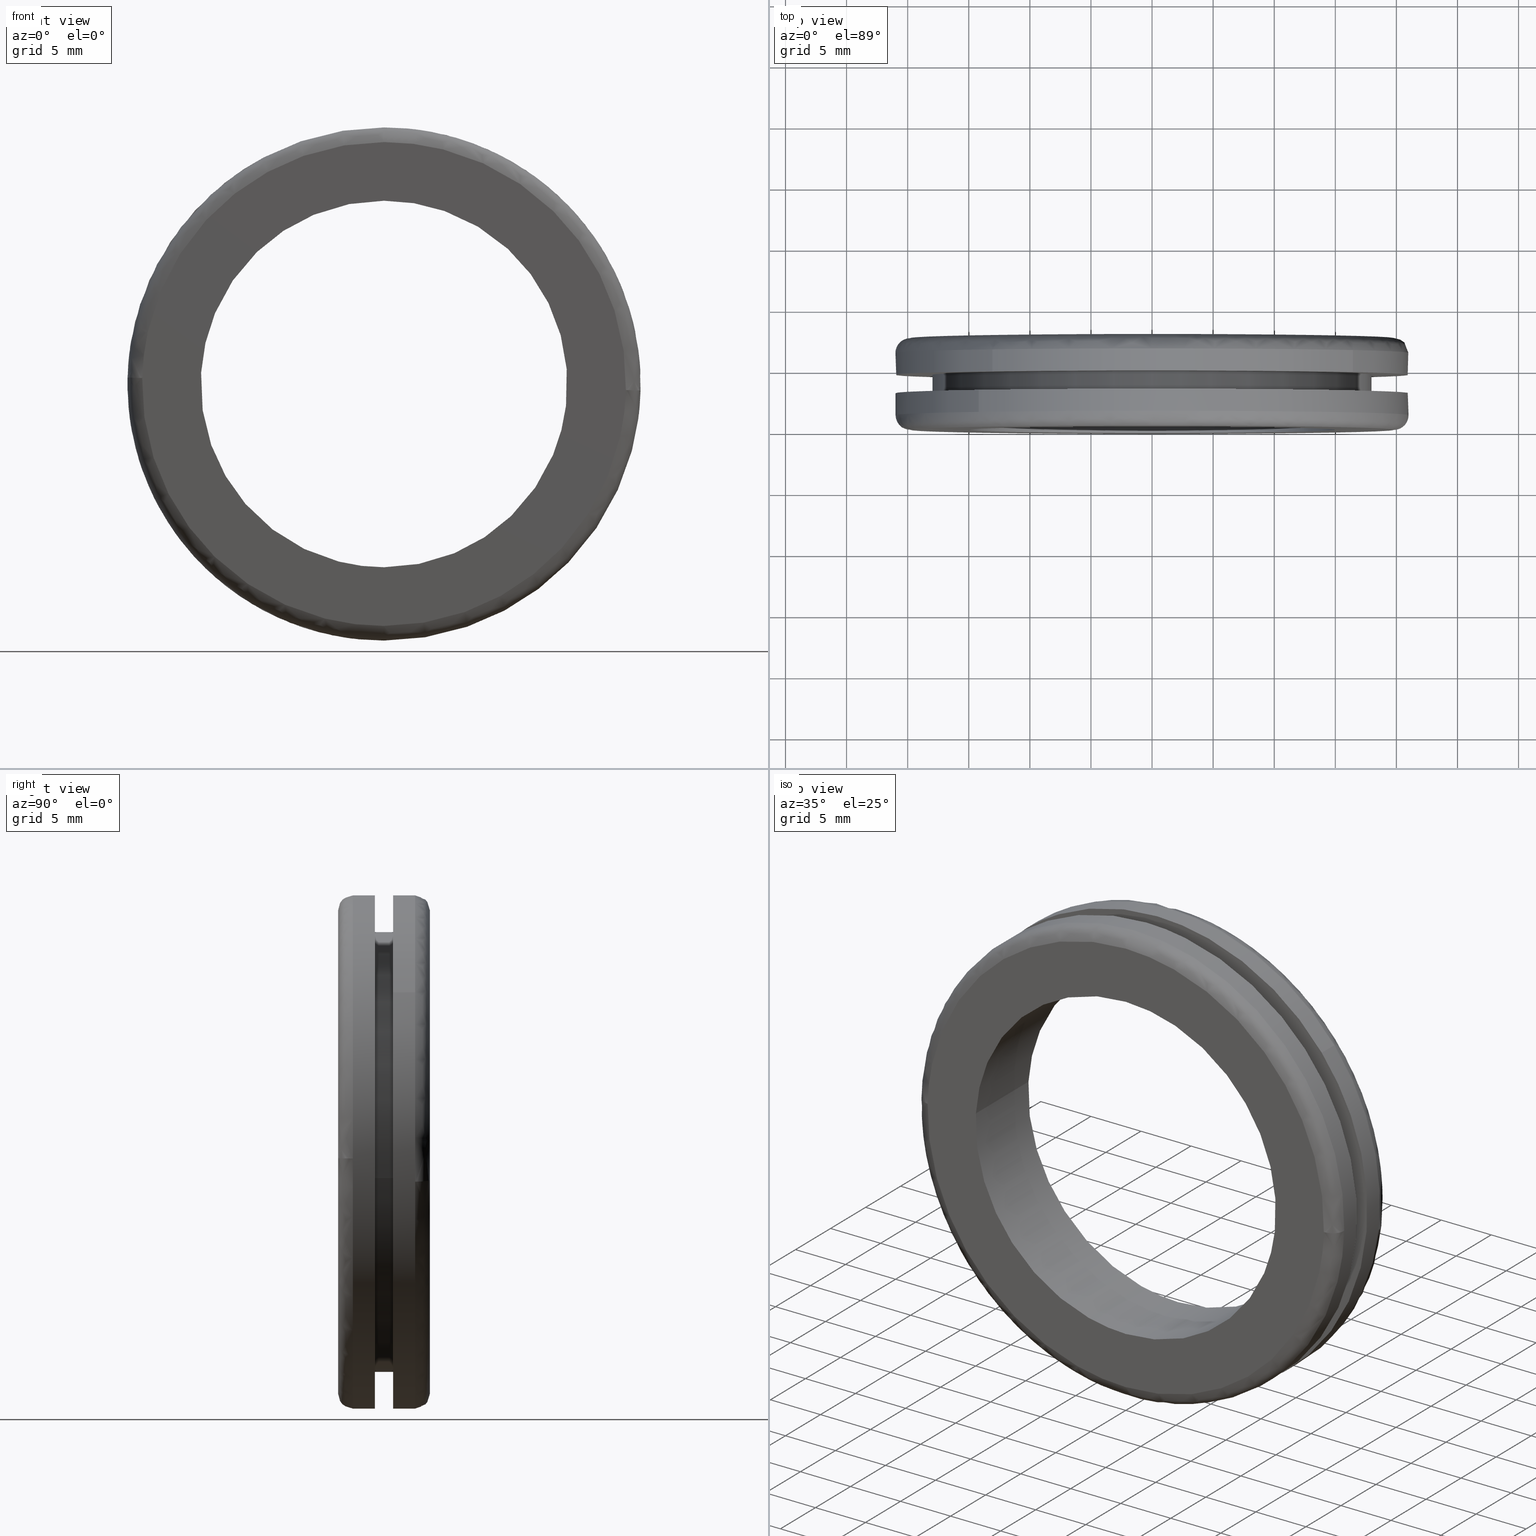
[diagram: canonical four-view strip — front | top / right | iso, engineering-drawing reading convention]
A machine part, canonical four-view strip (front | top / right | iso — engineering-drawing reading convention). The complete STEP part file that produces these views, byte-faithful:
ISO-10303-21;
HEADER;
/****************************************************************
 * Generated by software with PDE/Lib inside                    *
 * PDElib Version 4.4.1-0003, patched  Thursday August 19 11:58 *
 * International Technegroup Inc. (www.iti-oh.com)              *
 ****************************************************************/
FILE_DESCRIPTION((''),'2;1');
FILE_NAME('','2005-12-14T14:20:53',(''),(''),'','CADfix','');
FILE_SCHEMA(('AUTOMOTIVE_DESIGN'));
ENDSEC;
DATA;
#5=APPLICATION_CONTEXT('automotive design');
#6=APPLICATION_PROTOCOL_DEFINITION('Draft International Standard','automotive_design',1998,#5);
#7=PRODUCT_CONTEXT('None',#5,'mechanical');
#8=PRODUCT('grommet','','None',(#7));
#9=PRODUCT_RELATED_PRODUCT_CATEGORY('part','description',(#8));
#10=PRODUCT_DEFINITION_FORMATION('None','None',#8);
#11=PRODUCT_DEFINITION_CONTEXT('part definition',#5,'design');
#12=PRODUCT_DEFINITION('None','None',#10,#11);
#18=(NAMED_UNIT(*)PLANE_ANGLE_UNIT()SI_UNIT($,.RADIAN.));
#19=DIMENSIONAL_EXPONENTS(0.0,0.0,0.0,0.0,0.0,0.0,0.0);
#20=PLANE_ANGLE_MEASURE_WITH_UNIT(PLANE_ANGLE_MEASURE(0.017453292500000),#18);
#24=(CONVERSION_BASED_UNIT('DEGREE',#20)NAMED_UNIT(#19)PLANE_ANGLE_UNIT());
#28=(NAMED_UNIT(*)SI_UNIT($,.STERADIAN.)SOLID_ANGLE_UNIT());
#32=(LENGTH_UNIT()NAMED_UNIT(*)SI_UNIT(.MILLI.,.METRE.));
#34=UNCERTAINTY_MEASURE_WITH_UNIT(LENGTH_MEASURE(0.001000000000000),#32,'DISTANCE_ACCURACY_VALUE','');
#36=(GEOMETRIC_REPRESENTATION_CONTEXT(3)GLOBAL_UNCERTAINTY_ASSIGNED_CONTEXT((#34))GLOBAL_UNIT_ASSIGNED_CONTEXT((#24,#28,#32))REPRESENTATION_CONTEXT('None','None'));
#37=AXIS2_PLACEMENT_3D('',#38,#39,#40);
#38=CARTESIAN_POINT('',(0.0,0.0,0.0));
#39=DIRECTION('',(0.0,0.0,1.0));
#40=DIRECTION('',(1.0,0.0,0.0));
#41=ADVANCED_BREP_SHAPE_REPRESENTATION('',(#37,#1219),#36);
#42=PRODUCT_DEFINITION_SHAPE('','',#12);
#43=SHAPE_DEFINITION_REPRESENTATION(#42,#41);
#44=CARTESIAN_POINT('',(-13.741132797056794,3.045000000002589,-15.880216291148233));
#45=CARTESIAN_POINT('',(0.400068017547530,3.045000000002589,-28.116581006888243));
#46=CARTESIAN_POINT('',(14.187394359928859,3.045000000002588,-15.482824073012599));
#47=CARTESIAN_POINT('',(29.670218432941464,3.045000000002589,-1.295429713083735));
#48=CARTESIAN_POINT('',(15.482824073012599,3.045000000002588,14.187394359928859));
#49=CARTESIAN_POINT('',(1.295429713083735,3.045000000002589,29.670218432941464));
#50=CARTESIAN_POINT('',(-14.187394359928859,3.045000000002588,15.482824073012599));
#51=CARTESIAN_POINT('',(-13.741132797056794,1.153874999893835,-15.880216291148233));
#52=CARTESIAN_POINT('',(0.400068017547530,1.153874999893835,-28.116581006888243));
#53=CARTESIAN_POINT('',(14.187394359928859,1.153874999893835,-15.482824073012599));
#54=CARTESIAN_POINT('',(29.670218432941464,1.153874999893835,-1.295429713083735));
#55=CARTESIAN_POINT('',(15.482824073012599,1.153874999893835,14.187394359928859));
#56=CARTESIAN_POINT('',(1.295429713083735,1.153874999893835,29.670218432941464));
#57=CARTESIAN_POINT('',(-14.187394359928859,1.153874999893835,15.482824073012599));
#65=(BOUNDED_SURFACE()B_SPLINE_SURFACE(2,1,((#44,#51),(#45,#52),(#46,#53),(#47,#54),(#48,#55),(#49,#56),(#50,#57)),.UNSPECIFIED.,.F.,.F.,.U.)B_SPLINE_SURFACE_WITH_KNOTS((3,2,2,3),(2,2),(0.0,32.010424100192772,66.804363339532742,101.598302578872700),(0.0,1.0),.UNSPECIFIED.)GEOMETRIC_REPRESENTATION_ITEM()RATIONAL_B_SPLINE_SURFACE(((0.956886118190660,0.956886118190660),(0.730538238691624,0.730538238691624),(1.0,1.0),(0.707106781186548,0.707106781186548),(1.0,1.0),(0.707106781186548,0.707106781186548),(1.0,1.0)))REPRESENTATION_ITEM('')SURFACE());
#66=CARTESIAN_POINT('',(-13.741132103384320,3.000000000000033,-15.880216891382180));
#67=VERTEX_POINT('',#66);
#68=CARTESIAN_POINT('',(0.0,3.0,-21.0));
#69=VERTEX_POINT('',#68);
#70=CARTESIAN_POINT('',(-13.741132103384324,3.000000000000033,-15.880216891382176));
#71=CARTESIAN_POINT('',(-7.824350810012091,3.000000000000000,-21.000000000000004));
#72=CARTESIAN_POINT('',(0.0,3.0,-21.0));
#80=(BOUNDED_CURVE()B_SPLINE_CURVE(2,(#70,#71,#72),.UNSPECIFIED.,.F.,.U.)B_SPLINE_CURVE_WITH_KNOTS((3,3),(0.885882133147832,1.0),.UNSPECIFIED.)CURVE()GEOMETRIC_REPRESENTATION_ITEM()RATIONAL_B_SPLINE_CURVE((0.854663299575205,0.866302602614174,1.0))REPRESENTATION_ITEM(''));
#81=EDGE_CURVE('',#67,#69,#80,.T.);
#82=ORIENTED_EDGE('',*,*,#81,.T.);
#83=CARTESIAN_POINT('',(0.0,3.0,21.0));
#84=VERTEX_POINT('',#83);
#85=CARTESIAN_POINT('',(0.0,3.0,-21.0));
#86=CARTESIAN_POINT('',(21.000000000000007,3.000000000000000,-21.000000000000007));
#87=CARTESIAN_POINT('',(21.0,3.0,-3.061516E-016));
#88=CARTESIAN_POINT('',(21.000000000000007,3.000000000000000,21.000000000000007));
#89=CARTESIAN_POINT('',(0.0,3.0,21.0));
#97=(BOUNDED_CURVE()B_SPLINE_CURVE(2,(#85,#86,#87,#88,#89),.UNSPECIFIED.,.F.,.U.)B_SPLINE_CURVE_WITH_KNOTS((3,2,3),(0.0,0.250000000000000,0.500000000000000),.UNSPECIFIED.)CURVE()GEOMETRIC_REPRESENTATION_ITEM()RATIONAL_B_SPLINE_CURVE((1.0,0.707106781186547,1.0,0.707106781186547,1.0))REPRESENTATION_ITEM(''));
#98=EDGE_CURVE('',#69,#84,#97,.T.);
#99=ORIENTED_EDGE('',*,*,#98,.T.);
#100=CARTESIAN_POINT('',(-14.187393528154630,3.0,15.482824835193190));
#101=VERTEX_POINT('',#100);
#102=CARTESIAN_POINT('',(0.0,3.0,21.0));
#103=CARTESIAN_POINT('',(-8.166452719523072,3.0,21.0));
#104=CARTESIAN_POINT('',(-14.187393528154642,3.0,15.482824835193217));
#112=(BOUNDED_CURVE()B_SPLINE_CURVE(2,(#102,#103,#104),.UNSPECIFIED.,.F.,.U.)B_SPLINE_CURVE_WITH_KNOTS((3,3),(0.500000000000000,0.618415200974131),.UNSPECIFIED.)CURVE()GEOMETRIC_REPRESENTATION_ITEM()RATIONAL_B_SPLINE_CURVE((1.0,0.861267962520980,0.853959781838990))REPRESENTATION_ITEM(''));
#113=EDGE_CURVE('',#84,#101,#112,.T.);
#114=ORIENTED_EDGE('',*,*,#113,.T.);
#115=CARTESIAN_POINT('',(-14.187393490254490,1.199999999972146,15.482824869922180));
#116=VERTEX_POINT('',#115);
#117=CARTESIAN_POINT('',(-14.187393528154630,3.0,15.482824835193190));
#118=CARTESIAN_POINT('',(-14.187393490254490,1.199999999972146,15.482824869922180));
#119=QUASI_UNIFORM_CURVE('',1,(#117,#118),.UNSPECIFIED.,.F.,.U.);
#120=EDGE_CURVE('',#101,#116,#119,.T.);
#121=ORIENTED_EDGE('',*,*,#120,.T.);
#122=CARTESIAN_POINT('',(0.0,1.200000000000000,21.0));
#123=VERTEX_POINT('',#122);
#124=CARTESIAN_POINT('',(0.0,1.200000000000000,21.0));
#125=CARTESIAN_POINT('',(-8.166452689933331,1.200000000000000,21.000000000000004));
#126=CARTESIAN_POINT('',(-14.187393490254468,1.199999999972103,15.482824869922169));
#134=(BOUNDED_CURVE()B_SPLINE_CURVE(2,(#124,#125,#126),.UNSPECIFIED.,.F.,.U.)B_SPLINE_CURVE_WITH_KNOTS((3,3),(0.500000000000000,0.618415200604597),.UNSPECIFIED.)CURVE()GEOMETRIC_REPRESENTATION_ITEM()RATIONAL_B_SPLINE_CURVE((1.0,0.861267962953915,0.853959781884603))REPRESENTATION_ITEM(''));
#135=EDGE_CURVE('',#123,#116,#134,.T.);
#136=ORIENTED_EDGE('',*,*,#135,.F.);
#137=CARTESIAN_POINT('',(20.993367974949280,1.199999999896488,-0.527732004310620));
#138=VERTEX_POINT('',#137);
#139=CARTESIAN_POINT('',(20.993367974949287,1.199999999896487,-0.527732004310620));
#140=CARTESIAN_POINT('',(21.000000000000004,1.200000000000000,-0.263907674591506));
#141=CARTESIAN_POINT('',(21.0,1.200000000000000,-3.061516E-016));
#142=CARTESIAN_POINT('',(21.000000000000007,1.200000000000000,21.000000000000007));
#143=CARTESIAN_POINT('',(0.0,1.200000000000000,21.0));
#151=(BOUNDED_CURVE()B_SPLINE_CURVE(2,(#139,#140,#141,#142,#143),.UNSPECIFIED.,.F.,.U.)B_SPLINE_CURVE_WITH_KNOTS((3,2,3),(0.245579891769799,0.250000000000000,0.500000000000000),.UNSPECIFIED.)CURVE()GEOMETRIC_REPRESENTATION_ITEM()RATIONAL_B_SPLINE_CURVE((0.989826157681556,0.994821521091810,1.0,0.707106781186547,1.0))REPRESENTATION_ITEM(''));
#152=EDGE_CURVE('',#138,#123,#151,.T.);
#153=ORIENTED_EDGE('',*,*,#152,.F.);
#154=CARTESIAN_POINT('',(0.0,1.200000000000000,-21.0));
#155=VERTEX_POINT('',#154);
#156=CARTESIAN_POINT('',(0.0,1.200000000000000,-21.0));
#157=CARTESIAN_POINT('',(20.478735399792605,1.200000000000000,-21.000000000000007));
#158=CARTESIAN_POINT('',(20.993367974949283,1.199999999896487,-0.527732004310620));
#166=(BOUNDED_CURVE()B_SPLINE_CURVE(2,(#156,#157,#158),.UNSPECIFIED.,.F.,.U.)B_SPLINE_CURVE_WITH_KNOTS((3,3),(0.0,0.245579891769799),.UNSPECIFIED.)CURVE()GEOMETRIC_REPRESENTATION_ITEM()RATIONAL_B_SPLINE_CURVE((1.0,0.712285260094737,0.989826157681556))REPRESENTATION_ITEM(''));
#167=EDGE_CURVE('',#155,#138,#166,.T.);
#168=ORIENTED_EDGE('',*,*,#167,.F.);
#169=CARTESIAN_POINT('',(-13.741132111742621,1.200000000000000,-15.880216884149750));
#170=VERTEX_POINT('',#169);
#171=CARTESIAN_POINT('',(-13.741132111742619,1.199999999999999,-15.880216884149753));
#172=CARTESIAN_POINT('',(-7.824350822599507,1.200000000000000,-20.999999999999996));
#173=CARTESIAN_POINT('',(0.0,1.200000000000000,-21.0));
#181=(BOUNDED_CURVE()B_SPLINE_CURVE(2,(#171,#172,#173),.UNSPECIFIED.,.F.,.U.)B_SPLINE_CURVE_WITH_KNOTS((3,3),(0.885882132988790,1.0),.UNSPECIFIED.)CURVE()GEOMETRIC_REPRESENTATION_ITEM()RATIONAL_B_SPLINE_CURVE((0.854663299542762,0.866302602427844,1.0))REPRESENTATION_ITEM(''));
#182=EDGE_CURVE('',#170,#155,#181,.T.);
#183=ORIENTED_EDGE('',*,*,#182,.F.);
#184=CARTESIAN_POINT('',(-13.741132103384320,3.000000000000033,-15.880216891382180));
#185=CARTESIAN_POINT('',(-13.741132111742621,1.200000000000000,-15.880216884149750));
#186=QUASI_UNIFORM_CURVE('',1,(#184,#185),.UNSPECIFIED.,.F.,.U.);
#187=EDGE_CURVE('',#67,#170,#186,.T.);
#188=ORIENTED_EDGE('',*,*,#187,.F.);
#189=EDGE_LOOP('',(#82,#99,#114,#121,#136,#153,#168,#183,#188));
#190=FACE_OUTER_BOUND('',#189,.T.);
#191=ADVANCED_FACE('',(#190),#65,.T.);
#192=CARTESIAN_POINT('',(-14.187394359928859,3.045000000002588,15.482824073012599));
#193=CARTESIAN_POINT('',(-29.670218432941464,3.045000000002589,1.295429713083735));
#194=CARTESIAN_POINT('',(-15.482824073012599,3.045000000002588,-14.187394359928859));
#195=CARTESIAN_POINT('',(-14.661007491975170,3.045000000002589,-15.084249781134682));
#196=CARTESIAN_POINT('',(-13.741132797056794,3.045000000002589,-15.880216291148233));
#197=CARTESIAN_POINT('',(-14.187394359928859,1.153874999893835,15.482824073012599));
#198=CARTESIAN_POINT('',(-29.670218432941464,1.153874999893835,1.295429713083735));
#199=CARTESIAN_POINT('',(-15.482824073012599,1.153874999893835,-14.187394359928859));
#200=CARTESIAN_POINT('',(-14.661007491975170,1.153874999893835,-15.084249781134682));
#201=CARTESIAN_POINT('',(-13.741132797056794,1.153874999893835,-15.880216291148233));
#209=(BOUNDED_SURFACE()B_SPLINE_SURFACE(2,1,((#192,#197),(#193,#198),(#194,#199),(#195,#200),(#196,#201)),.UNSPECIFIED.,.F.,.F.,.U.)B_SPLINE_SURFACE_WITH_KNOTS((3,2,3),(2,2),(0.0,34.793939239339970,37.577454378487182),(0.0,1.0),.UNSPECIFIED.)GEOMETRIC_REPRESENTATION_ITEM()RATIONAL_B_SPLINE_SURFACE(((1.0,1.0),(0.707106781186548,0.707106781186548),(1.0,1.0),(0.976568542494924,0.976568542494924),(0.956886118190660,0.956886118190660)))REPRESENTATION_ITEM('')SURFACE());
#210=CARTESIAN_POINT('',(-14.187393528154642,3.0,15.482824835193217));
#211=CARTESIAN_POINT('',(-21.000000000000004,3.000000000000000,9.240221822025617));
#212=CARTESIAN_POINT('',(-21.0,3.0,-3.061516E-016));
#213=CARTESIAN_POINT('',(-20.999999999999996,3.000000000000000,-9.599128001649238));
#214=CARTESIAN_POINT('',(-13.741132103384322,3.000000000000033,-15.880216891382174));
#222=(BOUNDED_CURVE()B_SPLINE_CURVE(2,(#210,#211,#212,#213,#214),.UNSPECIFIED.,.F.,.U.)B_SPLINE_CURVE_WITH_KNOTS((3,2,3),(0.618415200974131,0.750000000000000,0.885882133147832),.UNSPECIFIED.)CURVE()GEOMETRIC_REPRESENTATION_ITEM()RATIONAL_B_SPLINE_CURVE((0.853959781838990,0.845838818665567,1.0,0.840804178572373,0.854663299575205))REPRESENTATION_ITEM(''));
#223=EDGE_CURVE('',#101,#67,#222,.T.);
#224=ORIENTED_EDGE('',*,*,#223,.T.);
#225=ORIENTED_EDGE('',*,*,#187,.T.);
#226=CARTESIAN_POINT('',(-20.993367974949280,1.199999999896488,0.527732004310620));
#227=VERTEX_POINT('',#226);
#228=CARTESIAN_POINT('',(-20.993367974949287,1.199999999896487,0.527732004310620));
#229=CARTESIAN_POINT('',(-21.000000000000004,1.200000000000000,0.263907674591503));
#230=CARTESIAN_POINT('',(-21.0,1.200000000000000,-3.061516E-016));
#231=CARTESIAN_POINT('',(-21.000000000000007,1.200000000000000,-9.599127988286659));
#232=CARTESIAN_POINT('',(-13.741132111742621,1.200000000000000,-15.880216884149755));
#240=(BOUNDED_CURVE()B_SPLINE_CURVE(2,(#228,#229,#230,#231,#232),.UNSPECIFIED.,.F.,.U.)B_SPLINE_CURVE_WITH_KNOTS((3,2,3),(0.745579891769799,0.750000000000000,0.885882132988789),.UNSPECIFIED.)CURVE()GEOMETRIC_REPRESENTATION_ITEM()RATIONAL_B_SPLINE_CURVE((0.989826157681556,0.994821521091810,1.0,0.840804178758704,0.854663299542762))REPRESENTATION_ITEM(''));
#241=EDGE_CURVE('',#227,#170,#240,.T.);
#242=ORIENTED_EDGE('',*,*,#241,.F.);
#243=CARTESIAN_POINT('',(-14.187393490254468,1.199999999972103,15.482824869922169));
#244=CARTESIAN_POINT('',(-20.769032832560868,1.199999999941611,9.451864244536521));
#245=CARTESIAN_POINT('',(-20.993367974949276,1.199999999896488,0.527732004310620));
#253=(BOUNDED_CURVE()B_SPLINE_CURVE(2,(#243,#244,#245),.UNSPECIFIED.,.F.,.U.)B_SPLINE_CURVE_WITH_KNOTS((3,3),(0.618415200604597,0.745579891769798),.UNSPECIFIED.)CURVE()GEOMETRIC_REPRESENTATION_ITEM()RATIONAL_B_SPLINE_CURVE((0.853959781884603,0.846111612190902,0.989826157681555))REPRESENTATION_ITEM(''));
#254=EDGE_CURVE('',#116,#227,#253,.T.);
#255=ORIENTED_EDGE('',*,*,#254,.F.);
#256=ORIENTED_EDGE('',*,*,#120,.F.);
#257=EDGE_LOOP('',(#224,#225,#242,#255,#256));
#258=FACE_OUTER_BOUND('',#257,.T.);
#259=ADVANCED_FACE('',(#258),#209,.T.);
#260=CARTESIAN_POINT('',(17.874171474545992,4.537500000000003,-2.124616223821652));
#261=CARTESIAN_POINT('',(17.934977078074905,4.537500000000001,-1.613065115483598));
#262=CARTESIAN_POINT('',(17.966426371593599,4.537500000000001,-1.098873711627426));
#263=CARTESIAN_POINT('',(19.065300083221029,4.537500000000001,16.867552659966176));
#264=CARTESIAN_POINT('',(1.098873711627426,4.537500000000001,17.966426371593599));
#265=CARTESIAN_POINT('',(-16.867552659966176,4.537500000000001,19.065300083221029));
#266=CARTESIAN_POINT('',(-17.966426371593599,4.537500000000001,1.098873711627425));
#267=CARTESIAN_POINT('',(17.874171474545992,2.961562500000000,-2.124616223821652));
#268=CARTESIAN_POINT('',(17.934977078074905,2.961562500000000,-1.613065115483598));
#269=CARTESIAN_POINT('',(17.966426371593599,2.961562499999999,-1.098873711627426));
#270=CARTESIAN_POINT('',(19.065300083221029,2.961562499999999,16.867552659966176));
#271=CARTESIAN_POINT('',(1.098873711627426,2.961562499999999,17.966426371593599));
#272=CARTESIAN_POINT('',(-16.867552659966176,2.961562499999999,19.065300083221029));
#273=CARTESIAN_POINT('',(-17.966426371593599,2.961562499999999,1.098873711627425));
#281=(BOUNDED_SURFACE()B_SPLINE_SURFACE(2,1,((#260,#267),(#261,#268),(#262,#269),(#263,#270),(#264,#271),(#265,#272),(#266,#273)),.UNSPECIFIED.,.F.,.F.,.U.)B_SPLINE_SURFACE_WITH_KNOTS((3,2,2,3),(2,2),(0.0,1.192935059634515,31.016311550497349,60.839688041360183),(0.0,1.0),.UNSPECIFIED.)GEOMETRIC_REPRESENTATION_ITEM()RATIONAL_B_SPLINE_SURFACE(((0.977505800795127,0.977505800795127),(0.988284271247462,0.988284271247462),(1.0,1.0),(0.707106781186548,0.707106781186548),(1.0,1.0),(0.707106781186548,0.707106781186548),(1.0,1.0)))REPRESENTATION_ITEM('')SURFACE());
#282=CARTESIAN_POINT('',(17.874173166973701,3.000000000000512,-2.124601985509664));
#283=VERTEX_POINT('',#282);
#284=CARTESIAN_POINT('',(0.0,3.0,18.0));
#285=VERTEX_POINT('',#284);
#286=CARTESIAN_POINT('',(17.874173166973701,3.000000000000512,-2.124601985509665));
#287=CARTESIAN_POINT('',(18.000000000000007,2.999999999999999,-1.066026959316431));
#288=CARTESIAN_POINT('',(18.0,3.0,-3.061516E-016));
#289=CARTESIAN_POINT('',(18.000000000000007,3.000000000000000,18.000000000000007));
#290=CARTESIAN_POINT('',(0.0,3.0,18.0));
#298=(BOUNDED_CURVE()B_SPLINE_CURVE(2,(#286,#287,#288,#289,#290),.UNSPECIFIED.,.F.,.U.)B_SPLINE_CURVE_WITH_KNOTS((3,2,3),(0.229562608141247,0.250000000000000,0.500000000000000),.UNSPECIFIED.)CURVE()GEOMETRIC_REPRESENTATION_ITEM()RATIONAL_B_SPLINE_CURVE((0.956027018059746,0.976056106057352,1.0,0.707106781186547,1.0))REPRESENTATION_ITEM(''));
#299=EDGE_CURVE('',#283,#285,#298,.T.);
#300=ORIENTED_EDGE('',*,*,#299,.F.);
#301=CARTESIAN_POINT('',(17.874173146101910,4.500000000000000,-2.124602161104200));
#302=VERTEX_POINT('',#301);
#303=CARTESIAN_POINT('',(17.874173146101910,4.500000000000000,-2.124602161104200));
#304=CARTESIAN_POINT('',(17.874173166973701,3.000000000000512,-2.124601985509664));
#305=QUASI_UNIFORM_CURVE('',1,(#303,#304),.UNSPECIFIED.,.F.,.U.);
#306=EDGE_CURVE('',#302,#283,#305,.T.);
#307=ORIENTED_EDGE('',*,*,#306,.F.);
#308=CARTESIAN_POINT('',(0.0,4.500000000000000,18.0));
#309=VERTEX_POINT('',#308);
#310=CARTESIAN_POINT('',(17.874173146101910,4.500000000000000,-2.124602161104200));
#311=CARTESIAN_POINT('',(18.000000000000004,4.500000000000001,-1.066027048041859));
#312=CARTESIAN_POINT('',(18.0,4.500000000000000,-3.061516E-016));
#313=CARTESIAN_POINT('',(18.000000000000007,4.500000000000000,18.000000000000007));
#314=CARTESIAN_POINT('',(0.0,4.500000000000000,18.0));
#322=(BOUNDED_CURVE()B_SPLINE_CURVE(2,(#310,#311,#312,#313,#314),.UNSPECIFIED.,.F.,.U.)B_SPLINE_CURVE_WITH_KNOTS((3,2,3),(0.229562606480971,0.250000000000000,0.500000000000000),.UNSPECIFIED.)CURVE()GEOMETRIC_REPRESENTATION_ITEM()RATIONAL_B_SPLINE_CURVE((0.956027014805534,0.976056104112218,1.0,0.707106781186547,1.0))REPRESENTATION_ITEM(''));
#323=EDGE_CURVE('',#302,#309,#322,.T.);
#324=ORIENTED_EDGE('',*,*,#323,.T.);
#325=CARTESIAN_POINT('',(-17.966427451944160,4.500000000000000,1.098856047767012));
#326=VERTEX_POINT('',#325);
#327=CARTESIAN_POINT('',(0.0,4.500000000000000,18.0));
#328=CARTESIAN_POINT('',(-16.932725882969979,4.500000000000001,18.0));
#329=CARTESIAN_POINT('',(-17.966427451944153,4.500000000000001,1.098856047767012));
#337=(BOUNDED_CURVE()B_SPLINE_CURVE(2,(#327,#328,#329),.UNSPECIFIED.,.F.,.U.)B_SPLINE_CURVE_WITH_KNOTS((3,3),(0.500000000000000,0.739333131882983),.UNSPECIFIED.)CURVE()GEOMETRIC_REPRESENTATION_ITEM()RATIONAL_B_SPLINE_CURVE((1.0,0.719603794536354,0.976072405246458))REPRESENTATION_ITEM(''));
#338=EDGE_CURVE('',#309,#326,#337,.T.);
#339=ORIENTED_EDGE('',*,*,#338,.T.);
#340=CARTESIAN_POINT('',(-17.966427465441718,2.999999999999833,1.098855827076634));
#341=VERTEX_POINT('',#340);
#342=CARTESIAN_POINT('',(-17.966427451944160,4.500000000000000,1.098856047767012));
#343=CARTESIAN_POINT('',(-17.966427465441718,2.999999999999833,1.098855827076634));
#344=QUASI_UNIFORM_CURVE('',1,(#342,#343),.UNSPECIFIED.,.F.,.U.);
#345=EDGE_CURVE('',#326,#341,#344,.T.);
#346=ORIENTED_EDGE('',*,*,#345,.T.);
#347=CARTESIAN_POINT('',(0.0,3.0,18.0));
#348=CARTESIAN_POINT('',(-16.932726091351547,3.000000000000000,17.999999999999996));
#349=CARTESIAN_POINT('',(-17.966427465441715,2.999999999999833,1.098855827076633));
#357=(BOUNDED_CURVE()B_SPLINE_CURVE(2,(#347,#348,#349),.UNSPECIFIED.,.F.,.U.)B_SPLINE_CURVE_WITH_KNOTS((3,3),(0.500000000000000,0.739333134002460),.UNSPECIFIED.)CURVE()GEOMETRIC_REPRESENTATION_ITEM()RATIONAL_B_SPLINE_CURVE((1.0,0.719603792053233,0.976072409788907))REPRESENTATION_ITEM(''));
#358=EDGE_CURVE('',#285,#341,#357,.T.);
#359=ORIENTED_EDGE('',*,*,#358,.F.);
#360=EDGE_LOOP('',(#300,#307,#324,#339,#346,#359));
#361=FACE_OUTER_BOUND('',#360,.T.);
#362=ADVANCED_FACE('',(#361),#281,.T.);
#363=CARTESIAN_POINT('',(-17.966426371593599,4.537500000000001,1.098873711627425));
#364=CARTESIAN_POINT('',(-19.065300083221029,4.537500000000001,-16.867552659966176));
#365=CARTESIAN_POINT('',(-1.098873711627426,4.537500000000001,-17.966426371593599));
#366=CARTESIAN_POINT('',(15.867782835111013,4.537500000000001,-19.004151541185493));
#367=CARTESIAN_POINT('',(17.874171474545992,4.537500000000003,-2.124616223821652));
#368=CARTESIAN_POINT('',(-17.966426371593599,2.961562499999999,1.098873711627425));
#369=CARTESIAN_POINT('',(-19.065300083221029,2.961562499999999,-16.867552659966176));
#370=CARTESIAN_POINT('',(-1.098873711627426,2.961562499999999,-17.966426371593599));
#371=CARTESIAN_POINT('',(15.867782835111013,2.961562499999999,-19.004151541185493));
#372=CARTESIAN_POINT('',(17.874171474545992,2.961562500000000,-2.124616223821652));
#380=(BOUNDED_SURFACE()B_SPLINE_SURFACE(2,1,((#363,#368),(#364,#369),(#365,#370),(#366,#371),(#367,#372)),.UNSPECIFIED.,.F.,.F.,.U.)B_SPLINE_SURFACE_WITH_KNOTS((3,2,3),(2,2),(0.0,29.823376490862831,58.453817922091147),(0.0,1.0),.UNSPECIFIED.)GEOMETRIC_REPRESENTATION_ITEM()RATIONAL_B_SPLINE_SURFACE(((1.0,1.0),(0.707106781186548,0.707106781186548),(1.0,1.0),(0.718822509939086,0.718822509939086),(0.977505800795127,0.977505800795127)))REPRESENTATION_ITEM('')SURFACE());
#381=CARTESIAN_POINT('',(0.0,3.0,-18.0));
#382=VERTEX_POINT('',#381);
#383=CARTESIAN_POINT('',(0.0,3.0,-18.0));
#384=CARTESIAN_POINT('',(15.987154291909832,3.000000000000000,-17.999999999999996));
#385=CARTESIAN_POINT('',(17.874173166973701,3.000000000000512,-2.124601985509665));
#393=(BOUNDED_CURVE()B_SPLINE_CURVE(2,(#383,#384,#385),.UNSPECIFIED.,.F.,.U.)B_SPLINE_CURVE_WITH_KNOTS((3,3),(0.0,0.229562608141247),.UNSPECIFIED.)CURVE()GEOMETRIC_REPRESENTATION_ITEM()RATIONAL_B_SPLINE_CURVE((1.0,0.731050675129196,0.956027018059746))REPRESENTATION_ITEM(''));
#394=EDGE_CURVE('',#382,#283,#393,.T.);
#395=ORIENTED_EDGE('',*,*,#394,.F.);
#396=CARTESIAN_POINT('',(-17.966427465441715,2.999999999999833,1.098855827076633));
#397=CARTESIAN_POINT('',(-18.0,3.0,0.549940772026614));
#398=CARTESIAN_POINT('',(-18.0,3.0,-3.061516E-016));
#399=CARTESIAN_POINT('',(-18.000000000000007,3.000000000000000,-18.000000000000007));
#400=CARTESIAN_POINT('',(0.0,3.0,-18.0));
#408=(BOUNDED_CURVE()B_SPLINE_CURVE(2,(#396,#397,#398,#399,#400),.UNSPECIFIED.,.F.,.U.)B_SPLINE_CURVE_WITH_KNOTS((3,2,3),(0.739333134002460,0.750000000000000,1.0),.UNSPECIFIED.)CURVE()GEOMETRIC_REPRESENTATION_ITEM()RATIONAL_B_SPLINE_CURVE((0.976072409788907,0.987502989133315,1.0,0.707106781186547,1.0))REPRESENTATION_ITEM(''));
#409=EDGE_CURVE('',#341,#382,#408,.T.);
#410=ORIENTED_EDGE('',*,*,#409,.F.);
#411=ORIENTED_EDGE('',*,*,#345,.F.);
#412=CARTESIAN_POINT('',(0.0,4.500000000000000,-18.0));
#413=VERTEX_POINT('',#412);
#414=CARTESIAN_POINT('',(-17.966427451944153,4.500000000000001,1.098856047767012));
#415=CARTESIAN_POINT('',(-18.000000000000004,4.500000000000000,0.549940882681184));
#416=CARTESIAN_POINT('',(-18.0,4.500000000000000,-3.061516E-016));
#417=CARTESIAN_POINT('',(-18.000000000000007,4.500000000000000,-18.000000000000007));
#418=CARTESIAN_POINT('',(0.0,4.500000000000000,-18.0));
#426=(BOUNDED_CURVE()B_SPLINE_CURVE(2,(#414,#415,#416,#417,#418),.UNSPECIFIED.,.F.,.U.)B_SPLINE_CURVE_WITH_KNOTS((3,2,3),(0.739333131882983,0.750000000000000,1.0),.UNSPECIFIED.)CURVE()GEOMETRIC_REPRESENTATION_ITEM()RATIONAL_B_SPLINE_CURVE((0.976072405246458,0.987502986650193,1.0,0.707106781186547,1.0))REPRESENTATION_ITEM(''));
#427=EDGE_CURVE('',#326,#413,#426,.T.);
#428=ORIENTED_EDGE('',*,*,#427,.T.);
#429=CARTESIAN_POINT('',(0.0,4.500000000000000,-18.0));
#430=CARTESIAN_POINT('',(15.987154133747634,4.500000000000000,-18.000000000000004));
#431=CARTESIAN_POINT('',(17.874173146101910,4.500000000000000,-2.124602161104200));
#439=(BOUNDED_CURVE()B_SPLINE_CURVE(2,(#429,#430,#431),.UNSPECIFIED.,.F.,.U.)B_SPLINE_CURVE_WITH_KNOTS((3,3),(0.0,0.229562606480971),.UNSPECIFIED.)CURVE()GEOMETRIC_REPRESENTATION_ITEM()RATIONAL_B_SPLINE_CURVE((1.0,0.731050677074329,0.956027014805534))REPRESENTATION_ITEM(''));
#440=EDGE_CURVE('',#413,#302,#439,.T.);
#441=ORIENTED_EDGE('',*,*,#440,.T.);
#442=ORIENTED_EDGE('',*,*,#306,.T.);
#443=EDGE_LOOP('',(#395,#410,#411,#428,#441,#442));
#444=FACE_OUTER_BOUND('',#443,.T.);
#445=ADVANCED_FACE('',(#444),#380,.T.);
#446=CARTESIAN_POINT('',(-13.072807369390009,6.345000000056996,16.434771293900688));
#447=CARTESIAN_POINT('',(-29.507578663290690,6.345000000056996,3.361963924510681));
#448=CARTESIAN_POINT('',(-16.434771293900688,6.345000000056996,-13.072807369390009));
#449=CARTESIAN_POINT('',(-3.361963924510681,6.345000000056996,-29.507578663290690));
#450=CARTESIAN_POINT('',(13.072807369390009,6.345000000056996,-16.434771293900688));
#451=CARTESIAN_POINT('',(29.507578663290690,6.345000000056996,-3.361963924510681));
#452=CARTESIAN_POINT('',(16.434771293900688,6.345000000056996,13.072807369390009));
#453=CARTESIAN_POINT('',(-13.072807369390009,4.453874999998575,16.434771293900688));
#454=CARTESIAN_POINT('',(-29.507578663290690,4.453874999998575,3.361963924510681));
#455=CARTESIAN_POINT('',(-16.434771293900688,4.453874999998575,-13.072807369390009));
#456=CARTESIAN_POINT('',(-3.361963924510681,4.453874999998575,-29.507578663290690));
#457=CARTESIAN_POINT('',(13.072807369390009,4.453874999998575,-16.434771293900688));
#458=CARTESIAN_POINT('',(29.507578663290690,4.453874999998575,-3.361963924510681));
#459=CARTESIAN_POINT('',(16.434771293900688,4.453874999998575,13.072807369390009));
#467=(BOUNDED_SURFACE()B_SPLINE_SURFACE(2,1,((#446,#453),(#447,#454),(#448,#455),(#449,#456),(#450,#457),(#451,#458),(#452,#459)),.UNSPECIFIED.,.F.,.F.,.U.)B_SPLINE_SURFACE_WITH_KNOTS((3,2,2,3),(2,2),(0.0,34.793939239339977,69.587878478679954,104.381817718019900),(0.0,1.0),.UNSPECIFIED.)GEOMETRIC_REPRESENTATION_ITEM()RATIONAL_B_SPLINE_SURFACE(((1.0,1.0),(0.707106781186548,0.707106781186548),(1.0,1.0),(0.707106781186548,0.707106781186548),(1.0,1.0),(0.707106781186548,0.707106781186548),(1.0,1.0)))REPRESENTATION_ITEM('')SURFACE());
#468=CARTESIAN_POINT('',(-13.072806069207591,6.300000000011240,16.434772328112299));
#469=VERTEX_POINT('',#468);
#470=CARTESIAN_POINT('',(-21.0,6.300000000052002,8.851079E-016));
#471=VERTEX_POINT('',#470);
#472=CARTESIAN_POINT('',(-13.072806069207587,6.300000000011240,16.434772328112302));
#473=CARTESIAN_POINT('',(-20.999999999999943,6.300000000026920,10.129198581101342));
#474=CARTESIAN_POINT('',(-21.000000000000004,6.300000000052002,8.851079E-016));
#482=(BOUNDED_CURVE()B_SPLINE_CURVE(2,(#472,#473,#474),.UNSPECIFIED.,.F.,.U.)B_SPLINE_CURVE_WITH_KNOTS((3,3),(0.607863865415925,0.749999999999999),.UNSPECIFIED.)CURVE()GEOMETRIC_REPRESENTATION_ITEM()RATIONAL_B_SPLINE_CURVE((0.856305622490842,0.833477160127873,0.999999999999998))REPRESENTATION_ITEM(''));
#483=EDGE_CURVE('',#469,#471,#482,.T.);
#484=ORIENTED_EDGE('',*,*,#483,.T.);
#485=CARTESIAN_POINT('',(0.0,6.300000000000000,-21.0));
#486=VERTEX_POINT('',#485);
#487=CARTESIAN_POINT('',(-21.0,6.300000000052002,8.851079E-016));
#488=CARTESIAN_POINT('',(-21.000000000000007,6.300000000000002,-21.000000000000007));
#489=CARTESIAN_POINT('',(0.0,6.300000000000000,-21.0));
#497=(BOUNDED_CURVE()B_SPLINE_CURVE(2,(#487,#488,#489),.UNSPECIFIED.,.F.,.U.)B_SPLINE_CURVE_WITH_KNOTS((3,3),(0.750000000000000,1.0),.UNSPECIFIED.)CURVE()GEOMETRIC_REPRESENTATION_ITEM()RATIONAL_B_SPLINE_CURVE((1.0,0.707106781186547,1.0))REPRESENTATION_ITEM(''));
#498=EDGE_CURVE('',#471,#486,#497,.T.);
#499=ORIENTED_EDGE('',*,*,#498,.T.);
#500=CARTESIAN_POINT('',(20.859544414485921,6.300000000055606,-2.424748815875383));
#501=VERTEX_POINT('',#500);
#502=CARTESIAN_POINT('',(0.0,6.300000000000000,-21.0));
#503=CARTESIAN_POINT('',(18.700325717353476,6.300000000000001,-20.999999999999996));
#504=CARTESIAN_POINT('',(20.859544414485928,6.300000000055606,-2.424748815875383));
#512=(BOUNDED_CURVE()B_SPLINE_CURVE(2,(#502,#503,#504),.UNSPECIFIED.,.F.,.U.)B_SPLINE_CURVE_WITH_KNOTS((3,3),(0.0,0.229999999999889),.UNSPECIFIED.)CURVE()GEOMETRIC_REPRESENTATION_ITEM()RATIONAL_B_SPLINE_CURVE((1.0,0.730538238691753,0.956886118190442))REPRESENTATION_ITEM(''));
#513=EDGE_CURVE('',#486,#501,#512,.T.);
#514=ORIENTED_EDGE('',*,*,#513,.T.);
#515=CARTESIAN_POINT('',(16.434772329288549,6.299999999999930,13.072806067728861));
#516=VERTEX_POINT('',#515);
#517=CARTESIAN_POINT('',(20.859544414485928,6.300000000055606,-2.424748815875383));
#518=CARTESIAN_POINT('',(20.999999999999996,6.300000000000000,-1.216442411062318));
#519=CARTESIAN_POINT('',(21.0,6.300000000000000,-3.061516E-016));
#520=CARTESIAN_POINT('',(21.000000000000004,6.300000000000000,7.333527368817955));
#521=CARTESIAN_POINT('',(16.434772329288549,6.299999999999930,13.072806067728857));
#529=(BOUNDED_CURVE()B_SPLINE_CURVE(2,(#517,#518,#519,#520,#521),.UNSPECIFIED.,.F.,.U.)B_SPLINE_CURVE_WITH_KNOTS((3,2,3),(0.229999999999889,0.250000000000000,0.357863865402305),.UNSPECIFIED.)CURVE()GEOMETRIC_REPRESENTATION_ITEM()RATIONAL_B_SPLINE_CURVE((0.956886118190442,0.976568542494794,1.0,0.873629621074632,0.856305622495217))REPRESENTATION_ITEM(''));
#530=EDGE_CURVE('',#501,#516,#529,.T.);
#531=ORIENTED_EDGE('',*,*,#530,.T.);
#532=CARTESIAN_POINT('',(16.434772412118811,4.500000000000000,13.072805963596920));
#533=VERTEX_POINT('',#532);
#534=CARTESIAN_POINT('',(16.434772329288549,6.299999999999930,13.072806067728861));
#535=CARTESIAN_POINT('',(16.434772412118811,4.500000000000000,13.072805963596920));
#536=QUASI_UNIFORM_CURVE('',1,(#534,#535),.UNSPECIFIED.,.F.,.U.);
#537=EDGE_CURVE('',#516,#533,#536,.T.);
#538=ORIENTED_EDGE('',*,*,#537,.T.);
#539=CARTESIAN_POINT('',(0.0,4.500000000000000,-21.0));
#540=VERTEX_POINT('',#539);
#541=CARTESIAN_POINT('',(0.0,4.500000000000000,-21.0));
#542=CARTESIAN_POINT('',(21.000000000000007,4.500000000000000,-21.000000000000007));
#543=CARTESIAN_POINT('',(21.0,4.500000000000000,-3.061516E-016));
#544=CARTESIAN_POINT('',(21.0,4.500000000000000,7.333527294175886));
#545=CARTESIAN_POINT('',(16.434772412118814,4.500000000000000,13.072805963596918));
#553=(BOUNDED_CURVE()B_SPLINE_CURVE(2,(#541,#542,#543,#544,#545),.UNSPECIFIED.,.F.,.U.)B_SPLINE_CURVE_WITH_KNOTS((3,2,3),(0.0,0.250000000000000,0.357863864443182),.UNSPECIFIED.)CURVE()GEOMETRIC_REPRESENTATION_ITEM()RATIONAL_B_SPLINE_CURVE((1.0,0.707106781186547,1.0,0.873629622198314,0.856305622803306))REPRESENTATION_ITEM(''));
#554=EDGE_CURVE('',#540,#533,#553,.T.);
#555=ORIENTED_EDGE('',*,*,#554,.F.);
#556=CARTESIAN_POINT('',(-13.072806084870271,4.500000000000000,16.434772315653660));
#557=VERTEX_POINT('',#556);
#558=CARTESIAN_POINT('',(-13.072806084870265,4.500000000000000,16.434772315653660));
#559=CARTESIAN_POINT('',(-21.0,4.500000000000001,10.129198568766535));
#560=CARTESIAN_POINT('',(-21.0,4.500000000000000,-3.061516E-016));
#561=CARTESIAN_POINT('',(-21.000000000000007,4.500000000000000,-21.000000000000007));
#562=CARTESIAN_POINT('',(0.0,4.500000000000000,-21.0));
#570=(BOUNDED_CURVE()B_SPLINE_CURVE(2,(#558,#559,#560,#561,#562),.UNSPECIFIED.,.F.,.U.)B_SPLINE_CURVE_WITH_KNOTS((3,2,3),(0.607863865560188,0.750000000000000,1.0),.UNSPECIFIED.)CURVE()GEOMETRIC_REPRESENTATION_ITEM()RATIONAL_B_SPLINE_CURVE((0.856305622444502,0.833477160296888,1.0,0.707106781186547,1.0))REPRESENTATION_ITEM(''));
#571=EDGE_CURVE('',#557,#540,#570,.T.);
#572=ORIENTED_EDGE('',*,*,#571,.F.);
#573=CARTESIAN_POINT('',(-13.072806069207591,6.300000000011240,16.434772328112299));
#574=CARTESIAN_POINT('',(-13.072806084870271,4.500000000000000,16.434772315653660));
#575=QUASI_UNIFORM_CURVE('',1,(#573,#574),.UNSPECIFIED.,.F.,.U.);
#576=EDGE_CURVE('',#469,#557,#575,.T.);
#577=ORIENTED_EDGE('',*,*,#576,.F.);
#578=EDGE_LOOP('',(#484,#499,#514,#531,#538,#555,#572,#577));
#579=FACE_OUTER_BOUND('',#578,.T.);
#580=ADVANCED_FACE('',(#579),#467,.T.);
#581=CARTESIAN_POINT('',(16.434771293900688,6.345000000056996,13.072807369390009));
#582=CARTESIAN_POINT('',(3.361963924510681,6.345000000056996,29.507578663290690));
#583=CARTESIAN_POINT('',(-13.072807369390009,6.345000000056996,16.434771293900688));
#584=CARTESIAN_POINT('',(16.434771293900688,4.453874999998575,13.072807369390009));
#585=CARTESIAN_POINT('',(3.361963924510681,4.453874999998575,29.507578663290690));
#586=CARTESIAN_POINT('',(-13.072807369390009,4.453874999998575,16.434771293900688));
#594=(BOUNDED_SURFACE()B_SPLINE_SURFACE(2,1,((#581,#584),(#582,#585),(#583,#586)),.UNSPECIFIED.,.F.,.F.,.U.)B_SPLINE_SURFACE_WITH_KNOTS((3,3),(2,2),(0.0,34.793939239339977),(0.0,1.0),.UNSPECIFIED.)GEOMETRIC_REPRESENTATION_ITEM()RATIONAL_B_SPLINE_SURFACE(((1.0,1.0),(0.707106781186548,0.707106781186548),(1.0,1.0)))REPRESENTATION_ITEM('')SURFACE());
#595=CARTESIAN_POINT('',(0.0,6.300000000000000,21.0));
#596=VERTEX_POINT('',#595);
#597=CARTESIAN_POINT('',(0.0,6.300000000000000,21.0));
#598=CARTESIAN_POINT('',(-7.333527369877913,6.300000000000001,20.999999999999996));
#599=CARTESIAN_POINT('',(-13.072806069207587,6.300000000011240,16.434772328112302));
#607=(BOUNDED_CURVE()B_SPLINE_CURVE(2,(#597,#598,#599),.UNSPECIFIED.,.F.,.U.)B_SPLINE_CURVE_WITH_KNOTS((3,3),(0.500000000000000,0.607863865415925),.UNSPECIFIED.)CURVE()GEOMETRIC_REPRESENTATION_ITEM()RATIONAL_B_SPLINE_CURVE((1.0,0.873629621058675,0.856305622490842))REPRESENTATION_ITEM(''));
#608=EDGE_CURVE('',#596,#469,#607,.T.);
#609=ORIENTED_EDGE('',*,*,#608,.T.);
#610=ORIENTED_EDGE('',*,*,#576,.T.);
#611=CARTESIAN_POINT('',(0.0,4.500000000000000,21.0));
#612=VERTEX_POINT('',#611);
#613=CARTESIAN_POINT('',(0.0,4.500000000000000,21.0));
#614=CARTESIAN_POINT('',(-7.333527381104963,4.499999999999999,21.000000000000004));
#615=CARTESIAN_POINT('',(-13.072806084870265,4.500000000000000,16.434772315653660));
#623=(BOUNDED_CURVE()B_SPLINE_CURVE(2,(#613,#614,#615),.UNSPECIFIED.,.F.,.U.)B_SPLINE_CURVE_WITH_KNOTS((3,3),(0.500000000000000,0.607863865560188),.UNSPECIFIED.)CURVE()GEOMETRIC_REPRESENTATION_ITEM()RATIONAL_B_SPLINE_CURVE((1.0,0.873629620889660,0.856305622444502))REPRESENTATION_ITEM(''));
#624=EDGE_CURVE('',#612,#557,#623,.T.);
#625=ORIENTED_EDGE('',*,*,#624,.F.);
#626=CARTESIAN_POINT('',(16.434772412118814,4.500000000000000,13.072805963596918));
#627=CARTESIAN_POINT('',(10.129198664272909,4.500000000000000,21.000000000000004));
#628=CARTESIAN_POINT('',(0.0,4.500000000000000,21.0));
#636=(BOUNDED_CURVE()B_SPLINE_CURVE(2,(#626,#627,#628),.UNSPECIFIED.,.F.,.U.)B_SPLINE_CURVE_WITH_KNOTS((3,3),(0.357863864443182,0.500000000000000),.UNSPECIFIED.)CURVE()GEOMETRIC_REPRESENTATION_ITEM()RATIONAL_B_SPLINE_CURVE((0.856305622803306,0.833477158988234,1.0))REPRESENTATION_ITEM(''));
#637=EDGE_CURVE('',#533,#612,#636,.T.);
#638=ORIENTED_EDGE('',*,*,#637,.F.);
#639=ORIENTED_EDGE('',*,*,#537,.F.);
#640=CARTESIAN_POINT('',(16.434772329288549,6.299999999999930,13.072806067728857));
#641=CARTESIAN_POINT('',(10.129198582265900,6.299999999999999,21.0));
#642=CARTESIAN_POINT('',(0.0,6.300000000000000,21.0));
#650=(BOUNDED_CURVE()B_SPLINE_CURVE(2,(#640,#641,#642),.UNSPECIFIED.,.F.,.U.)B_SPLINE_CURVE_WITH_KNOTS((3,3),(0.357863865402305,0.500000000000000),.UNSPECIFIED.)CURVE()GEOMETRIC_REPRESENTATION_ITEM()RATIONAL_B_SPLINE_CURVE((0.856305622495217,0.833477160111916,1.0))REPRESENTATION_ITEM(''));
#651=EDGE_CURVE('',#516,#596,#650,.T.);
#652=ORIENTED_EDGE('',*,*,#651,.T.);
#653=EDGE_LOOP('',(#609,#610,#625,#638,#639,#652));
#654=FACE_OUTER_BOUND('',#653,.T.);
#655=ADVANCED_FACE('',(#654),#594,.T.);
#656=CARTESIAN_POINT('',(14.895142895454988,7.687500000000003,-1.770513519851377));
#657=CARTESIAN_POINT('',(14.945814231729083,7.687500000000002,-1.344220929569665));
#658=CARTESIAN_POINT('',(14.972021976328000,7.687500000000001,-0.915728093022855));
#659=CARTESIAN_POINT('',(15.887750069350853,7.687500000000001,14.056293883305147));
#660=CARTESIAN_POINT('',(0.915728093022855,7.687500000000001,14.972021976328000));
#661=CARTESIAN_POINT('',(-14.056293883305147,7.687500000000001,15.887750069350853));
#662=CARTESIAN_POINT('',(-14.972021976328000,7.687500000000001,0.915728093022854));
#663=CARTESIAN_POINT('',(14.895142895454988,-0.192187500000004,-1.770513519851377));
#664=CARTESIAN_POINT('',(14.945814231729083,-0.192187500000004,-1.344220929569665));
#665=CARTESIAN_POINT('',(14.972021976328000,-0.192187500000004,-0.915728093022855));
#666=CARTESIAN_POINT('',(15.887750069350853,-0.192187500000004,14.056293883305147));
#667=CARTESIAN_POINT('',(0.915728093022855,-0.192187500000004,14.972021976328000));
#668=CARTESIAN_POINT('',(-14.056293883305147,-0.192187500000004,15.887750069350853));
#669=CARTESIAN_POINT('',(-14.972021976328000,-0.192187500000004,0.915728093022854));
#677=(BOUNDED_SURFACE()B_SPLINE_SURFACE(2,1,((#656,#663),(#657,#664),(#658,#665),(#659,#666),(#660,#667),(#661,#668),(#662,#669)),.UNSPECIFIED.,.F.,.F.,.U.)B_SPLINE_SURFACE_WITH_KNOTS((3,2,2,3),(2,2),(0.0,0.994112549695429,25.846926292081129,50.699740034466821),(0.0,7.879687500000007),.UNSPECIFIED.)GEOMETRIC_REPRESENTATION_ITEM()RATIONAL_B_SPLINE_SURFACE(((0.977505800795127,0.977505800795127),(0.988284271247462,0.988284271247462),(1.0,1.0),(0.707106781186548,0.707106781186548),(1.0,1.0),(0.707106781186548,0.707106781186548),(1.0,1.0)))REPRESENTATION_ITEM('')SURFACE());
#678=CARTESIAN_POINT('',(14.895144575568130,7.500000000000112,-1.770499385122951));
#679=VERTEX_POINT('',#678);
#680=CARTESIAN_POINT('',(0.0,7.500000000000000,15.0));
#681=VERTEX_POINT('',#680);
#682=CARTESIAN_POINT('',(14.895144575568130,7.500000000000112,-1.770499385122952));
#683=CARTESIAN_POINT('',(15.000000000000002,7.500000000000000,-0.888354652700172));
#684=CARTESIAN_POINT('',(15.0,7.500000000000000,-3.061516E-016));
#685=CARTESIAN_POINT('',(14.999999999999996,7.500000000000000,14.999999999999996));
#686=CARTESIAN_POINT('',(0.0,7.500000000000000,15.0));
#694=(BOUNDED_CURVE()B_SPLINE_CURVE(2,(#682,#683,#684,#685,#686),.UNSPECIFIED.,.F.,.U.)B_SPLINE_CURVE_WITH_KNOTS((3,2,3),(0.229562633891089,0.250000000000000,0.500000000000000),.UNSPECIFIED.)CURVE()GEOMETRIC_REPRESENTATION_ITEM()RATIONAL_B_SPLINE_CURVE((0.956027068530562,0.976056136225169,1.0,0.707106781186547,1.0))REPRESENTATION_ITEM(''));
#695=EDGE_CURVE('',#679,#681,#694,.T.);
#696=ORIENTED_EDGE('',*,*,#695,.F.);
#697=CARTESIAN_POINT('',(14.895144555315481,-1.789399E-015,-1.770499555509084));
#698=VERTEX_POINT('',#697);
#699=CARTESIAN_POINT('',(14.895144575568130,7.500000000000112,-1.770499385122951));
#700=CARTESIAN_POINT('',(14.895144555315481,-1.789399E-015,-1.770499555509084));
#701=QUASI_UNIFORM_CURVE('',1,(#699,#700),.UNSPECIFIED.,.F.,.U.);
#702=EDGE_CURVE('',#679,#698,#701,.T.);
#703=ORIENTED_EDGE('',*,*,#702,.T.);
#704=CARTESIAN_POINT('',(0.0,-2.755364E-015,15.0));
#705=VERTEX_POINT('',#704);
#706=CARTESIAN_POINT('',(14.895144555315476,-1.789399E-015,-1.770499555509084));
#707=CARTESIAN_POINT('',(14.999999999999998,-2.755364E-015,-0.888354738793865));
#708=CARTESIAN_POINT('',(15.0,-2.755364E-015,-3.061516E-016));
#709=CARTESIAN_POINT('',(14.999999999999996,-2.755364E-015,14.999999999999996));
#710=CARTESIAN_POINT('',(0.0,-2.755364E-015,15.0));
#718=(BOUNDED_CURVE()B_SPLINE_CURVE(2,(#706,#707,#708,#709,#710),.UNSPECIFIED.,.F.,.U.)B_SPLINE_CURVE_WITH_KNOTS((3,2,3),(0.229562631957854,0.250000000000000,0.500000000000000),.UNSPECIFIED.)CURVE()GEOMETRIC_REPRESENTATION_ITEM()RATIONAL_B_SPLINE_CURVE((0.956027064741336,0.976056133960243,1.0,0.707106781186547,1.0))REPRESENTATION_ITEM(''));
#719=EDGE_CURVE('',#698,#705,#718,.T.);
#720=ORIENTED_EDGE('',*,*,#719,.T.);
#721=CARTESIAN_POINT('',(-14.972022853837400,-2.224227E-015,0.915713745645394));
#722=VERTEX_POINT('',#721);
#723=CARTESIAN_POINT('',(0.0,-2.755364E-015,15.0));
#724=CARTESIAN_POINT('',(-14.110604550744977,-2.755364E-015,15.0));
#725=CARTESIAN_POINT('',(-14.972022853837398,-2.224227E-015,0.915713745645394));
#733=(BOUNDED_CURVE()B_SPLINE_CURVE(2,(#723,#724,#725),.UNSPECIFIED.,.F.,.U.)B_SPLINE_CURVE_WITH_KNOTS((3,3),(0.500000000000000,0.739333127589991),.UNSPECIFIED.)CURVE()GEOMETRIC_REPRESENTATION_ITEM()RATIONAL_B_SPLINE_CURVE((1.0,0.719603799565907,0.976072396045746))REPRESENTATION_ITEM(''));
#734=EDGE_CURVE('',#705,#722,#733,.T.);
#735=ORIENTED_EDGE('',*,*,#734,.T.);
#736=CARTESIAN_POINT('',(-14.972022864544920,7.500000000000110,0.915713570573430));
#737=VERTEX_POINT('',#736);
#738=CARTESIAN_POINT('',(-14.972022864544920,7.500000000000110,0.915713570573430));
#739=CARTESIAN_POINT('',(-14.972022853837400,-2.224227E-015,0.915713745645394));
#740=QUASI_UNIFORM_CURVE('',1,(#738,#739),.UNSPECIFIED.,.F.,.U.);
#741=EDGE_CURVE('',#737,#722,#740,.T.);
#742=ORIENTED_EDGE('',*,*,#741,.F.);
#743=CARTESIAN_POINT('',(0.0,7.500000000000000,15.0));
#744=CARTESIAN_POINT('',(-14.110604716052444,7.499999999999999,15.0));
#745=CARTESIAN_POINT('',(-14.972022864544918,7.500000000000110,0.915713570573430));
#753=(BOUNDED_CURVE()B_SPLINE_CURVE(2,(#743,#744,#745),.UNSPECIFIED.,.F.,.U.)B_SPLINE_CURVE_WITH_KNOTS((3,3),(0.500000000000000,0.739333129607628),.UNSPECIFIED.)CURVE()GEOMETRIC_REPRESENTATION_ITEM()RATIONAL_B_SPLINE_CURVE((1.0,0.719603797202098,0.976072400369933))REPRESENTATION_ITEM(''));
#754=EDGE_CURVE('',#681,#737,#753,.T.);
#755=ORIENTED_EDGE('',*,*,#754,.F.);
#756=EDGE_LOOP('',(#696,#703,#720,#735,#742,#755));
#757=FACE_OUTER_BOUND('',#756,.T.);
#758=ADVANCED_FACE('',(#757),#677,.F.);
#759=CARTESIAN_POINT('',(-14.972021976328000,7.687500000000001,0.915728093022854));
#760=CARTESIAN_POINT('',(-15.887750069350853,7.687500000000001,-14.056293883305147));
#761=CARTESIAN_POINT('',(-0.915728093022855,7.687500000000001,-14.972021976328000));
#762=CARTESIAN_POINT('',(13.223152362592515,7.687500000000002,-15.836792950987912));
#763=CARTESIAN_POINT('',(14.895142895454988,7.687500000000003,-1.770513519851377));
#764=CARTESIAN_POINT('',(-14.972021976328000,-0.192187500000004,0.915728093022854));
#765=CARTESIAN_POINT('',(-15.887750069350853,-0.192187500000004,-14.056293883305147));
#766=CARTESIAN_POINT('',(-0.915728093022855,-0.192187500000004,-14.972021976328000));
#767=CARTESIAN_POINT('',(13.223152362592515,-0.192187500000004,-15.836792950987912));
#768=CARTESIAN_POINT('',(14.895142895454988,-0.192187500000004,-1.770513519851377));
#776=(BOUNDED_SURFACE()B_SPLINE_SURFACE(2,1,((#759,#764),(#760,#765),(#761,#766),(#762,#767),(#763,#768)),.UNSPECIFIED.,.F.,.F.,.U.)B_SPLINE_SURFACE_WITH_KNOTS((3,2,3),(2,2),(0.0,24.852813742385699,48.711514935075961),(0.0,7.879687500000007),.UNSPECIFIED.)GEOMETRIC_REPRESENTATION_ITEM()RATIONAL_B_SPLINE_SURFACE(((1.0,1.0),(0.707106781186548,0.707106781186548),(1.0,1.0),(0.718822509939086,0.718822509939086),(0.977505800795127,0.977505800795127)))REPRESENTATION_ITEM('')SURFACE());
#777=CARTESIAN_POINT('',(0.0,7.500000000000000,-15.0));
#778=VERTEX_POINT('',#777);
#779=CARTESIAN_POINT('',(0.0,7.500000000000000,-15.0));
#780=CARTESIAN_POINT('',(13.322630620756192,7.499999999999999,-14.999999999999993));
#781=CARTESIAN_POINT('',(14.895144575568130,7.500000000000112,-1.770499385122952));
#789=(BOUNDED_CURVE()B_SPLINE_CURVE(2,(#779,#780,#781),.UNSPECIFIED.,.F.,.U.)B_SPLINE_CURVE_WITH_KNOTS((3,3),(0.0,0.229562633891089),.UNSPECIFIED.)CURVE()GEOMETRIC_REPRESENTATION_ITEM()RATIONAL_B_SPLINE_CURVE((1.0,0.731050644961379,0.956027068530562))REPRESENTATION_ITEM(''));
#790=EDGE_CURVE('',#778,#679,#789,.T.);
#791=ORIENTED_EDGE('',*,*,#790,.F.);
#792=CARTESIAN_POINT('',(-14.972022864544918,7.500000000000110,0.915713570573430));
#793=CARTESIAN_POINT('',(-14.999999999999996,7.500000000000000,0.458284167894892));
#794=CARTESIAN_POINT('',(-15.0,7.500000000000000,-3.061516E-016));
#795=CARTESIAN_POINT('',(-14.999999999999996,7.500000000000000,-14.999999999999996));
#796=CARTESIAN_POINT('',(0.0,7.500000000000000,-15.0));
#804=(BOUNDED_CURVE()B_SPLINE_CURVE(2,(#792,#793,#794,#795,#796),.UNSPECIFIED.,.F.,.U.)B_SPLINE_CURVE_WITH_KNOTS((3,2,3),(0.739333129607628,0.750000000000000,1.0),.UNSPECIFIED.)CURVE()GEOMETRIC_REPRESENTATION_ITEM()RATIONAL_B_SPLINE_CURVE((0.976072400369933,0.987502983984449,1.0,0.707106781186547,1.0))REPRESENTATION_ITEM(''));
#805=EDGE_CURVE('',#737,#778,#804,.T.);
#806=ORIENTED_EDGE('',*,*,#805,.F.);
#807=ORIENTED_EDGE('',*,*,#741,.T.);
#808=CARTESIAN_POINT('',(0.0,-2.755364E-015,-15.0));
#809=VERTEX_POINT('',#808);
#810=CARTESIAN_POINT('',(-14.972022853837398,-2.224227E-015,0.915713745645394));
#811=CARTESIAN_POINT('',(-14.999999999999998,-2.755364E-015,0.458284255676304));
#812=CARTESIAN_POINT('',(-15.0,-2.755364E-015,-3.061516E-016));
#813=CARTESIAN_POINT('',(-14.999999999999996,-2.755364E-015,-14.999999999999996));
#814=CARTESIAN_POINT('',(0.0,-2.755364E-015,-15.0));
#822=(BOUNDED_CURVE()B_SPLINE_CURVE(2,(#810,#811,#812,#813,#814),.UNSPECIFIED.,.F.,.U.)B_SPLINE_CURVE_WITH_KNOTS((3,2,3),(0.739333127589991,0.750000000000000,1.0),.UNSPECIFIED.)CURVE()GEOMETRIC_REPRESENTATION_ITEM()RATIONAL_B_SPLINE_CURVE((0.976072396045746,0.987502981620640,1.0,0.707106781186547,1.0))REPRESENTATION_ITEM(''));
#823=EDGE_CURVE('',#722,#809,#822,.T.);
#824=ORIENTED_EDGE('',*,*,#823,.T.);
#825=CARTESIAN_POINT('',(0.0,-2.755364E-015,-15.0));
#826=CARTESIAN_POINT('',(13.322630467285304,-2.755364E-015,-14.999999999999996));
#827=CARTESIAN_POINT('',(14.895144555315476,-1.789399E-015,-1.770499555509084));
#835=(BOUNDED_CURVE()B_SPLINE_CURVE(2,(#825,#826,#827),.UNSPECIFIED.,.F.,.U.)B_SPLINE_CURVE_WITH_KNOTS((3,3),(0.0,0.229562631957854),.UNSPECIFIED.)CURVE()GEOMETRIC_REPRESENTATION_ITEM()RATIONAL_B_SPLINE_CURVE((1.0,0.731050647226305,0.956027064741336))REPRESENTATION_ITEM(''));
#836=EDGE_CURVE('',#809,#698,#835,.T.);
#837=ORIENTED_EDGE('',*,*,#836,.T.);
#838=ORIENTED_EDGE('',*,*,#702,.F.);
#839=EDGE_LOOP('',(#791,#806,#807,#824,#837,#838));
#840=FACE_OUTER_BOUND('',#839,.T.);
#841=ADVANCED_FACE('',(#840),#776,.F.);
#842=CARTESIAN_POINT('',(19.584905655962345,7.497110752785397,-2.276580406893847));
#843=CARTESIAN_POINT('',(19.716778334758423,7.497110752785396,-1.142109616844359));
#844=CARTESIAN_POINT('',(19.716778334758416,7.497110752785395,-3.621794E-015));
#845=CARTESIAN_POINT('',(19.716778334758427,7.497110752785394,19.716778334758409));
#846=CARTESIAN_POINT('',(4.829058E-015,7.497110752785395,19.716778334758416));
#847=CARTESIAN_POINT('',(-19.716778334758409,7.497110752785394,19.716778334758427));
#848=CARTESIAN_POINT('',(-19.716778334758416,7.497110752785395,6.036323E-015));
#849=CARTESIAN_POINT('',(20.952207806636945,7.592803943791779,-2.435517771270782));
#850=CARTESIAN_POINT('',(21.093287055048435,7.592803943791781,-1.221844947861489));
#851=CARTESIAN_POINT('',(21.093287055048425,7.592803943791780,-3.874646E-015));
#852=CARTESIAN_POINT('',(21.093287055048421,7.592803943791777,21.093287055048417));
#853=CARTESIAN_POINT('',(5.166195E-015,7.592803943791780,21.093287055048425));
#854=CARTESIAN_POINT('',(-21.093287055048417,7.592803943791777,21.093287055048425));
#855=CARTESIAN_POINT('',(-21.093287055048425,7.592803943791780,6.457743E-015));
#856=CARTESIAN_POINT('',(20.856643796430927,6.216331072732919,-2.424409259590359));
#857=CARTESIAN_POINT('',(20.997079575721664,6.216331072732920,-1.216272055298318));
#858=CARTESIAN_POINT('',(20.997079575721667,6.216331072732919,-3.856974E-015));
#859=CARTESIAN_POINT('',(20.997079575721664,6.216331072732920,20.997079575721664));
#860=CARTESIAN_POINT('',(5.142631E-015,6.216331072732919,20.997079575721667));
#861=CARTESIAN_POINT('',(-20.997079575721664,6.216331072732920,20.997079575721664));
#862=CARTESIAN_POINT('',(-20.997079575721667,6.216331072732919,6.428289E-015));
#870=(BOUNDED_SURFACE()B_SPLINE_SURFACE(2,2,((#842,#849,#856),(#843,#850,#857),(#844,#851,#858),(#845,#852,#859),(#846,#853,#860),(#847,#854,#861),(#848,#855,#862)),.UNSPECIFIED.,.F.,.F.,.U.)B_SPLINE_SURFACE_WITH_KNOTS((3,2,2,3),(3,3),(0.0,2.783125387559395,37.572225909523503,72.361326431487598),(0.0,2.186845457319874),.UNSPECIFIED.)GEOMETRIC_REPRESENTATION_ITEM()RATIONAL_B_SPLINE_SURFACE(((0.876476107372700,0.573569792434621,0.871620813974785),(0.894504543896973,0.585367680030376,0.889549380864171),(0.915966964431935,0.599412781759712,0.910892908998245),(0.647686451892679,0.423848842712185,0.644098552887400),(0.915966964431935,0.599412781759712,0.910892908998245),(0.647686451892679,0.423848842712185,0.644098552887400),(0.915966964431935,0.599412781759712,0.910892908998245)))REPRESENTATION_ITEM('')SURFACE());
#871=ORIENTED_EDGE('',*,*,#651,.F.);
#872=ORIENTED_EDGE('',*,*,#530,.F.);
#873=CARTESIAN_POINT('',(19.667570450064581,7.499999999999999,-2.286191740977825));
#874=VERTEX_POINT('',#873);
#875=CARTESIAN_POINT('',(19.667570450064581,7.499999999999999,-2.286191740977825));
#876=CARTESIAN_POINT('',(20.859544414376245,7.499999995718756,-2.424748815855713));
#877=CARTESIAN_POINT('',(20.859544414485924,6.300000000055606,-2.424748815875383));
#885=(BOUNDED_CURVE()B_SPLINE_CURVE(2,(#875,#876,#877),.UNSPECIFIED.,.F.,.U.)B_SPLINE_CURVE_WITH_KNOTS((3,3),(-1.736413117379730,-0.276558718110652),.UNSPECIFIED.)CURVE()GEOMETRIC_REPRESENTATION_ITEM()RATIONAL_B_SPLINE_CURVE((0.850203275032257,0.599621899853280,0.845789311865304))REPRESENTATION_ITEM(''));
#886=EDGE_CURVE('',#874,#501,#885,.T.);
#887=ORIENTED_EDGE('',*,*,#886,.F.);
#888=CARTESIAN_POINT('',(0.0,7.500000000000000,19.800000000000001));
#889=VERTEX_POINT('',#888);
#890=CARTESIAN_POINT('',(19.667570450064581,7.499999999999999,-2.286191740977825));
#891=CARTESIAN_POINT('',(19.800000000000004,7.500000000000001,-1.146931416193113));
#892=CARTESIAN_POINT('',(19.800000000000001,7.500000000000000,-3.061516E-016));
#893=CARTESIAN_POINT('',(19.800000000000001,7.500000000000000,19.800000000000001));
#894=CARTESIAN_POINT('',(0.0,7.500000000000000,19.800000000000001));
#902=(BOUNDED_CURVE()B_SPLINE_CURVE(2,(#890,#891,#892,#893,#894),.UNSPECIFIED.,.F.,.U.)B_SPLINE_CURVE_WITH_KNOTS((3,2,3),(0.229999999999061,0.250000000000000,0.500000000000000),.UNSPECIFIED.)CURVE()GEOMETRIC_REPRESENTATION_ITEM()RATIONAL_B_SPLINE_CURVE((0.956886118188811,0.976568542493824,1.0,0.707106781186547,1.0))REPRESENTATION_ITEM(''));
#903=EDGE_CURVE('',#874,#889,#902,.T.);
#904=ORIENTED_EDGE('',*,*,#903,.T.);
#905=CARTESIAN_POINT('',(-19.800000000222230,7.500000000000000,8.852452E-016));
#906=VERTEX_POINT('',#905);
#907=CARTESIAN_POINT('',(0.0,7.500000000000000,19.800000000000001));
#908=CARTESIAN_POINT('',(-19.799999999999901,7.500000000000000,19.800000000000001));
#909=CARTESIAN_POINT('',(-19.800000000222230,7.500000000000000,8.852452E-016));
#917=(BOUNDED_CURVE()B_SPLINE_CURVE(2,(#907,#908,#909),.UNSPECIFIED.,.F.,.U.)B_SPLINE_CURVE_WITH_KNOTS((3,3),(0.500000000000000,0.749999999999999),.UNSPECIFIED.)CURVE()GEOMETRIC_REPRESENTATION_ITEM()RATIONAL_B_SPLINE_CURVE((1.0,0.707106781186548,0.999999999999998))REPRESENTATION_ITEM(''));
#918=EDGE_CURVE('',#889,#906,#917,.T.);
#919=ORIENTED_EDGE('',*,*,#918,.T.);
#920=CARTESIAN_POINT('',(-19.800000000222230,7.500000000000000,8.852452E-016));
#921=CARTESIAN_POINT('',(-20.999999999895991,7.499999999555545,1.748501E-015));
#922=CARTESIAN_POINT('',(-21.0,6.300000000052003,8.851079E-016));
#930=(BOUNDED_CURVE()B_SPLINE_CURVE(2,(#920,#921,#922),.UNSPECIFIED.,.F.,.U.)B_SPLINE_CURVE_WITH_KNOTS((3,3),(-1.736413120688840,-0.276558718104465),.UNSPECIFIED.)CURVE()GEOMETRIC_REPRESENTATION_ITEM()RATIONAL_B_SPLINE_CURVE((0.888510408925025,0.626638727321098,0.883897567107214))REPRESENTATION_ITEM(''));
#931=EDGE_CURVE('',#906,#471,#930,.T.);
#932=ORIENTED_EDGE('',*,*,#931,.T.);
#933=ORIENTED_EDGE('',*,*,#483,.F.);
#934=ORIENTED_EDGE('',*,*,#608,.F.);
#935=EDGE_LOOP('',(#871,#872,#887,#904,#919,#932,#933,#934));
#936=FACE_OUTER_BOUND('',#935,.T.);
#937=ADVANCED_FACE('',(#936),#870,.T.);
#938=CARTESIAN_POINT('',(-19.716778334758416,7.497110752785395,1.207265E-015));
#939=CARTESIAN_POINT('',(-19.716778334758409,7.497110752785394,-19.716778334758409));
#940=CARTESIAN_POINT('',(-2.414529E-015,7.497110752785395,-19.716778334758416));
#941=CARTESIAN_POINT('',(17.557627474146848,7.497110752785395,-19.716778334758427));
#942=CARTESIAN_POINT('',(19.584905399261086,7.497110752785396,-2.276582615235632));
#943=CARTESIAN_POINT('',(-21.093287055048425,7.592803943791780,1.291549E-015));
#944=CARTESIAN_POINT('',(-21.093287055048421,7.592803943791777,-21.093287055048421));
#945=CARTESIAN_POINT('',(-2.583097E-015,7.592803943791780,-21.093287055048425));
#946=CARTESIAN_POINT('',(18.783397065681022,7.592803943791775,-21.093287055048425));
#947=CARTESIAN_POINT('',(20.952207532014310,7.592803943791779,-2.435520133785917));
#948=CARTESIAN_POINT('',(-20.997079575721667,6.216331072732919,1.285658E-015));
#949=CARTESIAN_POINT('',(-20.997079575721664,6.216331072732920,-20.997079575721664));
#950=CARTESIAN_POINT('',(-2.571316E-015,6.216331072732919,-20.997079575721667));
#951=CARTESIAN_POINT('',(18.697725103783064,6.216331072732916,-20.997079575721664));
#952=CARTESIAN_POINT('',(20.856643523060864,6.216331072732919,-2.424411611329950));
#960=(BOUNDED_SURFACE()B_SPLINE_SURFACE(2,2,((#938,#943,#948),(#939,#944,#949),(#940,#945,#950),(#941,#946,#951),(#942,#947,#952)),.UNSPECIFIED.,.F.,.F.,.U.)B_SPLINE_SURFACE_WITH_KNOTS((3,2,3),(3,3),(0.0,34.789100521964102,66.795073002171080),(0.0,2.186845457319870),.UNSPECIFIED.)GEOMETRIC_REPRESENTATION_ITEM()RATIONAL_B_SPLINE_SURFACE(((0.915966964431935,0.599412781759712,0.910892908998245),(0.647686451892679,0.423848842712185,0.644098552887400),(0.915966964431935,0.599412781759712,0.910892908998245),(0.669148892895819,0.437893957835987,0.665442101376267),(0.876476072986156,0.573569769931916,0.871620779778728)))REPRESENTATION_ITEM('')SURFACE());
#961=ORIENTED_EDGE('',*,*,#513,.F.);
#962=ORIENTED_EDGE('',*,*,#498,.F.);
#963=ORIENTED_EDGE('',*,*,#931,.F.);
#964=CARTESIAN_POINT('',(0.0,7.500000000000000,-19.800000000000001));
#965=VERTEX_POINT('',#964);
#966=CARTESIAN_POINT('',(-19.800000000222230,7.500000000000000,8.852452E-016));
#967=CARTESIAN_POINT('',(-19.800000000000001,7.500000000000000,-19.800000000000001));
#968=CARTESIAN_POINT('',(0.0,7.500000000000000,-19.800000000000001));
#976=(BOUNDED_CURVE()B_SPLINE_CURVE(2,(#966,#967,#968),.UNSPECIFIED.,.F.,.U.)B_SPLINE_CURVE_WITH_KNOTS((3,3),(0.750000000000000,1.0),.UNSPECIFIED.)CURVE()GEOMETRIC_REPRESENTATION_ITEM()RATIONAL_B_SPLINE_CURVE((1.0,0.707106781186547,1.0))REPRESENTATION_ITEM(''));
#977=EDGE_CURVE('',#906,#965,#976,.T.);
#978=ORIENTED_EDGE('',*,*,#977,.T.);
#979=CARTESIAN_POINT('',(0.0,7.500000000000000,-19.800000000000001));
#980=CARTESIAN_POINT('',(17.631735676274946,7.499999999999999,-19.799999999999997));
#981=CARTESIAN_POINT('',(19.667570450064577,7.499999999999999,-2.286191740977825));
#989=(BOUNDED_CURVE()B_SPLINE_CURVE(2,(#979,#980,#981),.UNSPECIFIED.,.F.,.U.)B_SPLINE_CURVE_WITH_KNOTS((3,3),(0.0,0.229999999999061),.UNSPECIFIED.)CURVE()GEOMETRIC_REPRESENTATION_ITEM()RATIONAL_B_SPLINE_CURVE((1.0,0.730538238692724,0.956886118188812))REPRESENTATION_ITEM(''));
#990=EDGE_CURVE('',#965,#874,#989,.T.);
#991=ORIENTED_EDGE('',*,*,#990,.T.);
#992=ORIENTED_EDGE('',*,*,#886,.T.);
#993=EDGE_LOOP('',(#961,#962,#963,#978,#991,#992));
#994=FACE_OUTER_BOUND('',#993,.T.);
#995=ADVANCED_FACE('',(#994),#960,.T.);
#996=CARTESIAN_POINT('',(-20.990448453942729,1.283669199614412,0.527658613290874));
#997=CARTESIAN_POINT('',(-21.518107067233608,1.283669199614412,-20.462789840651851));
#998=CARTESIAN_POINT('',(-0.527658613290880,1.283669199614412,-20.990448453942729));
#999=CARTESIAN_POINT('',(20.462789840651851,1.283669199614412,-21.518107067233608));
#1000=CARTESIAN_POINT('',(20.990448453942729,1.283669199614412,-0.527658613290881));
#1001=CARTESIAN_POINT('',(-21.086625869068445,-0.092803736712181,0.530076324451571));
#1002=CARTESIAN_POINT('',(-21.616702193520020,-0.092803736712181,-20.556549544616868));
#1003=CARTESIAN_POINT('',(-0.530076324451577,-0.092803736712181,-21.086625869068445));
#1004=CARTESIAN_POINT('',(20.556549544616868,-0.092803736712181,-21.616702193520020));
#1005=CARTESIAN_POINT('',(21.086625869068445,-0.092803736712181,-0.530076324451578));
#1006=CARTESIAN_POINT('',(-19.710551762087665,0.002889233499369,0.495484526345487));
#1007=CARTESIAN_POINT('',(-20.206036288433165,0.002889233499369,-19.215067235742175));
#1008=CARTESIAN_POINT('',(-0.495484526345492,0.002889233499369,-19.710551762087665));
#1009=CARTESIAN_POINT('',(19.215067235742175,0.002889233499369,-20.206036288433165));
#1010=CARTESIAN_POINT('',(19.710551762087665,0.002889233499369,-0.495484526345494));
#1018=(BOUNDED_SURFACE()B_SPLINE_SURFACE(2,2,((#996,#1001,#1006),(#997,#1002,#1007),(#998,#1003,#1008),(#999,#1004,#1009),(#1000,#1005,#1010)),.UNSPECIFIED.,.F.,.F.,.U.)B_SPLINE_SURFACE_WITH_KNOTS((3,2,3),(3,3),(0.0,34.789100490425007,69.578200980850013),(0.0,2.186845548512761),.UNSPECIFIED.)GEOMETRIC_REPRESENTATION_ITEM()RATIONAL_B_SPLINE_SURFACE(((0.910893002652437,0.599412768279433,0.915966895101402),(0.644098619110914,0.423848833180188,0.647686402868588),(0.910893002652437,0.599412768279433,0.915966895101402),(0.644098619110914,0.423848833180188,0.647686402868588),(0.910893002652437,0.599412768279433,0.915966895101402)))REPRESENTATION_ITEM('')SURFACE());
#1019=ORIENTED_EDGE('',*,*,#241,.T.);
#1020=ORIENTED_EDGE('',*,*,#182,.T.);
#1021=ORIENTED_EDGE('',*,*,#167,.T.);
#1022=CARTESIAN_POINT('',(19.793746948737748,-1.553015E-015,-0.497575889833101));
#1023=VERTEX_POINT('',#1022);
#1024=CARTESIAN_POINT('',(20.993367974949280,1.199999999896489,-0.527732004310620));
#1025=CARTESIAN_POINT('',(20.993367974742334,1.859005E-009,-0.527732004304883));
#1026=CARTESIAN_POINT('',(19.793746948737745,-1.553015E-015,-0.497575889833101));
#1034=(BOUNDED_CURVE()B_SPLINE_CURVE(2,(#1024,#1025,#1026),.UNSPECIFIED.,.F.,.U.)B_SPLINE_CURVE_WITH_KNOTS((3,3),(-1.723441281807144,-0.263586880531164),.UNSPECIFIED.)CURVE()GEOMETRIC_REPRESENTATION_ITEM()RATIONAL_B_SPLINE_CURVE((0.883897567076061,0.626638727551946,0.888510408487331))REPRESENTATION_ITEM(''));
#1035=EDGE_CURVE('',#138,#1023,#1034,.T.);
#1036=ORIENTED_EDGE('',*,*,#1035,.T.);
#1037=CARTESIAN_POINT('',(0.0,-3.637081E-015,-19.800000000000001));
#1038=VERTEX_POINT('',#1037);
#1039=CARTESIAN_POINT('',(0.0,-3.637081E-015,-19.800000000000001));
#1040=CARTESIAN_POINT('',(19.308521948315054,-3.637081E-015,-19.799999999999997));
#1041=CARTESIAN_POINT('',(19.793746948737748,-1.553015E-015,-0.497575889833101));
#1049=(BOUNDED_CURVE()B_SPLINE_CURVE(2,(#1039,#1040,#1041),.UNSPECIFIED.,.F.,.U.)B_SPLINE_CURVE_WITH_KNOTS((3,3),(0.0,0.245579891769248),.UNSPECIFIED.)CURVE()GEOMETRIC_REPRESENTATION_ITEM()RATIONAL_B_SPLINE_CURVE((1.0,0.712285260095383,0.989826157680311))REPRESENTATION_ITEM(''));
#1050=EDGE_CURVE('',#1038,#1023,#1049,.T.);
#1051=ORIENTED_EDGE('',*,*,#1050,.F.);
#1052=CARTESIAN_POINT('',(-19.793746948737748,-1.568634E-015,0.497575889833109));
#1053=VERTEX_POINT('',#1052);
#1054=CARTESIAN_POINT('',(-19.793746948737752,-1.568634E-015,0.497575889833109));
#1055=CARTESIAN_POINT('',(-19.800000000000004,-3.637081E-015,0.248827236074597));
#1056=CARTESIAN_POINT('',(-19.800000000000001,-3.637081E-015,-3.061516E-016));
#1057=CARTESIAN_POINT('',(-19.800000000000001,-3.637081E-015,-19.800000000000001));
#1058=CARTESIAN_POINT('',(0.0,-3.637081E-015,-19.800000000000001));
#1066=(BOUNDED_CURVE()B_SPLINE_CURVE(2,(#1054,#1055,#1056,#1057,#1058),.UNSPECIFIED.,.F.,.U.)B_SPLINE_CURVE_WITH_KNOTS((3,2,3),(0.745579891769248,0.750000000000000,1.0),.UNSPECIFIED.)CURVE()GEOMETRIC_REPRESENTATION_ITEM()RATIONAL_B_SPLINE_CURVE((0.989826157680311,0.994821521091164,1.0,0.707106781186547,1.0))REPRESENTATION_ITEM(''));
#1067=EDGE_CURVE('',#1053,#1038,#1066,.T.);
#1068=ORIENTED_EDGE('',*,*,#1067,.F.);
#1069=CARTESIAN_POINT('',(-20.993367974949280,1.199999999896487,0.527732004310620));
#1070=CARTESIAN_POINT('',(-20.993367974742345,1.859006E-009,0.527732004304885));
#1071=CARTESIAN_POINT('',(-19.793746948737752,-1.568634E-015,0.497575889833109));
#1079=(BOUNDED_CURVE()B_SPLINE_CURVE(2,(#1069,#1070,#1071),.UNSPECIFIED.,.F.,.U.)B_SPLINE_CURVE_WITH_KNOTS((3,3),(-1.723441281807144,-0.263586880531165),.UNSPECIFIED.)CURVE()GEOMETRIC_REPRESENTATION_ITEM()RATIONAL_B_SPLINE_CURVE((0.883897567076061,0.626638727551946,0.888510408487331))REPRESENTATION_ITEM(''));
#1080=EDGE_CURVE('',#227,#1053,#1079,.T.);
#1081=ORIENTED_EDGE('',*,*,#1080,.F.);
#1082=EDGE_LOOP('',(#1019,#1020,#1021,#1036,#1051,#1068,#1081));
#1083=FACE_OUTER_BOUND('',#1082,.T.);
#1084=ADVANCED_FACE('',(#1083),#1018,.T.);
#1085=CARTESIAN_POINT('',(20.990448453942729,1.283669199614412,-0.527658613290871));
#1086=CARTESIAN_POINT('',(21.518107067233593,1.283669199614412,20.462789840651851));
#1087=CARTESIAN_POINT('',(0.527658613290872,1.283669199614412,20.990448453942729));
#1088=CARTESIAN_POINT('',(-20.462789840651851,1.283669199614412,21.518107067233608));
#1089=CARTESIAN_POINT('',(-20.990448453942729,1.283669199614412,0.527658613290874));
#1090=CARTESIAN_POINT('',(21.086625869068445,-0.092803736712181,-0.530076324451568));
#1091=CARTESIAN_POINT('',(21.616702193520013,-0.092803736712181,20.556549544616878));
#1092=CARTESIAN_POINT('',(0.530076324451570,-0.092803736712181,21.086625869068445));
#1093=CARTESIAN_POINT('',(-20.556549544616878,-0.092803736712181,21.616702193520013));
#1094=CARTESIAN_POINT('',(-21.086625869068445,-0.092803736712181,0.530076324451571));
#1095=CARTESIAN_POINT('',(19.710551762087665,0.002889233499369,-0.495484526345484));
#1096=CARTESIAN_POINT('',(20.206036288433165,0.002889233499369,19.215067235742190));
#1097=CARTESIAN_POINT('',(0.495484526345486,0.002889233499369,19.710551762087665));
#1098=CARTESIAN_POINT('',(-19.215067235742190,0.002889233499369,20.206036288433165));
#1099=CARTESIAN_POINT('',(-19.710551762087665,0.002889233499369,0.495484526345487));
#1107=(BOUNDED_SURFACE()B_SPLINE_SURFACE(2,2,((#1085,#1090,#1095),(#1086,#1091,#1096),(#1087,#1092,#1097),(#1088,#1093,#1098),(#1089,#1094,#1099)),.UNSPECIFIED.,.F.,.F.,.U.)B_SPLINE_SURFACE_WITH_KNOTS((3,2,3),(3,3),(0.0,34.789100490425007,69.578200980850013),(0.0,2.186845548512761),.UNSPECIFIED.)GEOMETRIC_REPRESENTATION_ITEM()RATIONAL_B_SPLINE_SURFACE(((0.910893002652437,0.599412768279433,0.915966895101402),(0.644098619110914,0.423848833180188,0.647686402868588),(0.910893002652437,0.599412768279433,0.915966895101402),(0.644098619110914,0.423848833180188,0.647686402868588),(0.910893002652437,0.599412768279433,0.915966895101402)))REPRESENTATION_ITEM('')SURFACE());
#1108=ORIENTED_EDGE('',*,*,#135,.T.);
#1109=ORIENTED_EDGE('',*,*,#254,.T.);
#1110=ORIENTED_EDGE('',*,*,#1080,.T.);
#1111=CARTESIAN_POINT('',(0.0,-3.637081E-015,19.800000000000001));
#1112=VERTEX_POINT('',#1111);
#1113=CARTESIAN_POINT('',(0.0,-3.637081E-015,19.800000000000001));
#1114=CARTESIAN_POINT('',(-19.308521948315036,-3.637081E-015,19.800000000000004));
#1115=CARTESIAN_POINT('',(-19.793746948737752,-1.568634E-015,0.497575889833109));
#1123=(BOUNDED_CURVE()B_SPLINE_CURVE(2,(#1113,#1114,#1115),.UNSPECIFIED.,.F.,.U.)B_SPLINE_CURVE_WITH_KNOTS((3,3),(0.500000000000000,0.745579891769248),.UNSPECIFIED.)CURVE()GEOMETRIC_REPRESENTATION_ITEM()RATIONAL_B_SPLINE_CURVE((1.0,0.712285260095383,0.989826157680310))REPRESENTATION_ITEM(''));
#1124=EDGE_CURVE('',#1112,#1053,#1123,.T.);
#1125=ORIENTED_EDGE('',*,*,#1124,.F.);
#1126=CARTESIAN_POINT('',(19.793746948737745,-1.553015E-015,-0.497575889833101));
#1127=CARTESIAN_POINT('',(19.800000000000001,-3.637081E-015,-0.248827236074592));
#1128=CARTESIAN_POINT('',(19.800000000000001,-3.637081E-015,-3.061516E-016));
#1129=CARTESIAN_POINT('',(19.800000000000001,-3.637081E-015,19.800000000000001));
#1130=CARTESIAN_POINT('',(0.0,-3.637081E-015,19.800000000000001));
#1138=(BOUNDED_CURVE()B_SPLINE_CURVE(2,(#1126,#1127,#1128,#1129,#1130),.UNSPECIFIED.,.F.,.U.)B_SPLINE_CURVE_WITH_KNOTS((3,2,3),(0.245579891769248,0.250000000000000,0.500000000000000),.UNSPECIFIED.)CURVE()GEOMETRIC_REPRESENTATION_ITEM()RATIONAL_B_SPLINE_CURVE((0.989826157680311,0.994821521091165,1.0,0.707106781186547,1.0))REPRESENTATION_ITEM(''));
#1139=EDGE_CURVE('',#1023,#1112,#1138,.T.);
#1140=ORIENTED_EDGE('',*,*,#1139,.F.);
#1141=ORIENTED_EDGE('',*,*,#1035,.F.);
#1142=ORIENTED_EDGE('',*,*,#152,.T.);
#1143=EDGE_LOOP('',(#1108,#1109,#1110,#1125,#1140,#1141,#1142));
#1144=FACE_OUTER_BOUND('',#1143,.T.);
#1145=ADVANCED_FACE('',(#1144),#1107,.T.);
#1146=CARTESIAN_POINT('',(-23.095669161852289,3.0,23.097899918595850));
#1147=CARTESIAN_POINT('',(-23.095669161852289,3.0,-23.097901045123638));
#1148=CARTESIAN_POINT('',(23.097794919784949,3.0,23.097899918595850));
#1149=CARTESIAN_POINT('',(23.097794919784949,3.0,-23.097901045123638));
#1150=B_SPLINE_SURFACE_WITH_KNOTS('',1,1,((#1146,#1148),(#1147,#1149)),.UNSPECIFIED.,.F.,.F.,.U.,(2,2),(2,2),(0.0,46.195800963719492),(0.0,46.193464081637252),.UNSPECIFIED.);
#1151=ORIENTED_EDGE('',*,*,#81,.F.);
#1152=ORIENTED_EDGE('',*,*,#223,.F.);
#1153=ORIENTED_EDGE('',*,*,#113,.F.);
#1154=ORIENTED_EDGE('',*,*,#98,.F.);
#1155=EDGE_LOOP('',(#1151,#1152,#1153,#1154));
#1156=FACE_OUTER_BOUND('',#1155,.T.);
#1157=ORIENTED_EDGE('',*,*,#358,.T.);
#1158=ORIENTED_EDGE('',*,*,#409,.T.);
#1159=ORIENTED_EDGE('',*,*,#394,.T.);
#1160=ORIENTED_EDGE('',*,*,#299,.T.);
#1161=EDGE_LOOP('',(#1157,#1158,#1159,#1160));
#1162=FACE_BOUND('',#1161,.T.);
#1163=ADVANCED_FACE('',(#1156,#1162),#1150,.F.);
#1164=CARTESIAN_POINT('',(-23.097407030264140,4.500000000000000,-23.097899918595850));
#1165=CARTESIAN_POINT('',(-23.097407030264140,4.500000000000000,23.097901045123638));
#1166=CARTESIAN_POINT('',(23.097868155637990,4.500000000000000,-23.097899918595850));
#1167=CARTESIAN_POINT('',(23.097868155637990,4.500000000000000,23.097901045123638));
#1168=B_SPLINE_SURFACE_WITH_KNOTS('',1,1,((#1164,#1166),(#1165,#1167)),.UNSPECIFIED.,.F.,.F.,.U.,(2,2),(2,2),(0.0,46.195800963719492),(0.0,46.195275185902133),.UNSPECIFIED.);
#1169=ORIENTED_EDGE('',*,*,#554,.T.);
#1170=ORIENTED_EDGE('',*,*,#637,.T.);
#1171=ORIENTED_EDGE('',*,*,#624,.T.);
#1172=ORIENTED_EDGE('',*,*,#571,.T.);
#1173=EDGE_LOOP('',(#1169,#1170,#1171,#1172));
#1174=FACE_OUTER_BOUND('',#1173,.T.);
#1175=ORIENTED_EDGE('',*,*,#338,.F.);
#1176=ORIENTED_EDGE('',*,*,#323,.F.);
#1177=ORIENTED_EDGE('',*,*,#440,.F.);
#1178=ORIENTED_EDGE('',*,*,#427,.F.);
#1179=EDGE_LOOP('',(#1175,#1176,#1177,#1178));
#1180=FACE_BOUND('',#1179,.T.);
#1181=ADVANCED_FACE('',(#1174,#1180),#1168,.F.);
#1182=CARTESIAN_POINT('',(-21.778013719899491,7.500000000000000,21.778019038295572));
#1183=CARTESIAN_POINT('',(-21.778013719899491,7.500000000000000,-21.778017976140799));
#1184=CARTESIAN_POINT('',(21.777906173973388,7.500000000000000,21.778019038295572));
#1185=CARTESIAN_POINT('',(21.777906173973388,7.500000000000000,-21.778017976140799));
#1186=B_SPLINE_SURFACE_WITH_KNOTS('',1,1,((#1182,#1184),(#1183,#1185)),.UNSPECIFIED.,.F.,.F.,.U.,(2,2),(2,2),(0.0,43.556037014436363),(0.0,43.555919893872883),.UNSPECIFIED.);
#1187=ORIENTED_EDGE('',*,*,#977,.F.);
#1188=ORIENTED_EDGE('',*,*,#918,.F.);
#1189=ORIENTED_EDGE('',*,*,#903,.F.);
#1190=ORIENTED_EDGE('',*,*,#990,.F.);
#1191=EDGE_LOOP('',(#1187,#1188,#1189,#1190));
#1192=FACE_OUTER_BOUND('',#1191,.T.);
#1193=ORIENTED_EDGE('',*,*,#754,.T.);
#1194=ORIENTED_EDGE('',*,*,#805,.T.);
#1195=ORIENTED_EDGE('',*,*,#790,.T.);
#1196=ORIENTED_EDGE('',*,*,#695,.T.);
#1197=EDGE_LOOP('',(#1193,#1194,#1195,#1196));
#1198=FACE_BOUND('',#1197,.T.);
#1199=ADVANCED_FACE('',(#1192,#1198),#1186,.F.);
#1200=CARTESIAN_POINT('',(-21.771142192188400,-3.196223E-015,-21.778019038295572));
#1201=CARTESIAN_POINT('',(-21.771142192188400,-3.196223E-015,21.778017976140799));
#1202=CARTESIAN_POINT('',(21.771143254007729,-3.196223E-015,-21.778019038295572));
#1203=CARTESIAN_POINT('',(21.771143254007729,-3.196223E-015,21.778017976140799));
#1204=B_SPLINE_SURFACE_WITH_KNOTS('',1,1,((#1200,#1202),(#1201,#1203)),.UNSPECIFIED.,.F.,.F.,.U.,(2,2),(2,2),(0.0,43.556037014436363),(0.0,43.542285446196132),.UNSPECIFIED.);
#1205=ORIENTED_EDGE('',*,*,#1050,.T.);
#1206=ORIENTED_EDGE('',*,*,#1139,.T.);
#1207=ORIENTED_EDGE('',*,*,#1124,.T.);
#1208=ORIENTED_EDGE('',*,*,#1067,.T.);
#1209=EDGE_LOOP('',(#1205,#1206,#1207,#1208));
#1210=FACE_OUTER_BOUND('',#1209,.T.);
#1211=ORIENTED_EDGE('',*,*,#734,.F.);
#1212=ORIENTED_EDGE('',*,*,#719,.F.);
#1213=ORIENTED_EDGE('',*,*,#836,.F.);
#1214=ORIENTED_EDGE('',*,*,#823,.F.);
#1215=EDGE_LOOP('',(#1211,#1212,#1213,#1214));
#1216=FACE_BOUND('',#1215,.T.);
#1217=ADVANCED_FACE('',(#1210,#1216),#1204,.F.);
#1218=CLOSED_SHELL('',(#191,#259,#362,#445,#580,#655,#758,#841,#937,#995,#1084,#1145,#1163,#1181,#1199,#1217));
#1219=MANIFOLD_SOLID_BREP('grommet',#1218);
#1225=(NAMED_UNIT(*)PLANE_ANGLE_UNIT()SI_UNIT($,.RADIAN.));
#1226=DIMENSIONAL_EXPONENTS(0.0,0.0,0.0,0.0,0.0,0.0,0.0);
#1227=PLANE_ANGLE_MEASURE_WITH_UNIT(PLANE_ANGLE_MEASURE(0.017453292500000),#1225);
#1231=(CONVERSION_BASED_UNIT('DEGREE',#1227)NAMED_UNIT(#1226)PLANE_ANGLE_UNIT());
#1235=(NAMED_UNIT(*)SI_UNIT($,.STERADIAN.)SOLID_ANGLE_UNIT());
#1239=(LENGTH_UNIT()NAMED_UNIT(*)SI_UNIT(.MILLI.,.METRE.));
#1241=UNCERTAINTY_MEASURE_WITH_UNIT(LENGTH_MEASURE(0.001000000000000),#1239,'DISTANCE_ACCURACY_VALUE','');
#1243=(GEOMETRIC_REPRESENTATION_CONTEXT(3)GLOBAL_UNCERTAINTY_ASSIGNED_CONTEXT((#1241))GLOBAL_UNIT_ASSIGNED_CONTEXT((#1231,#1235,#1239))REPRESENTATION_CONTEXT('','3D'));
ENDSEC;
END-ISO-10303-21;
